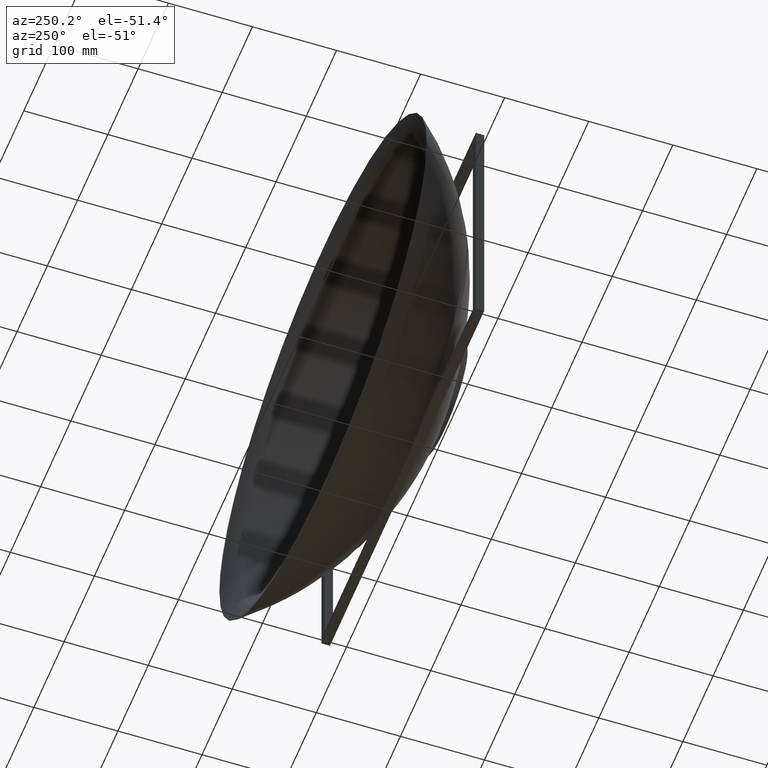
[diagram: clean part render]
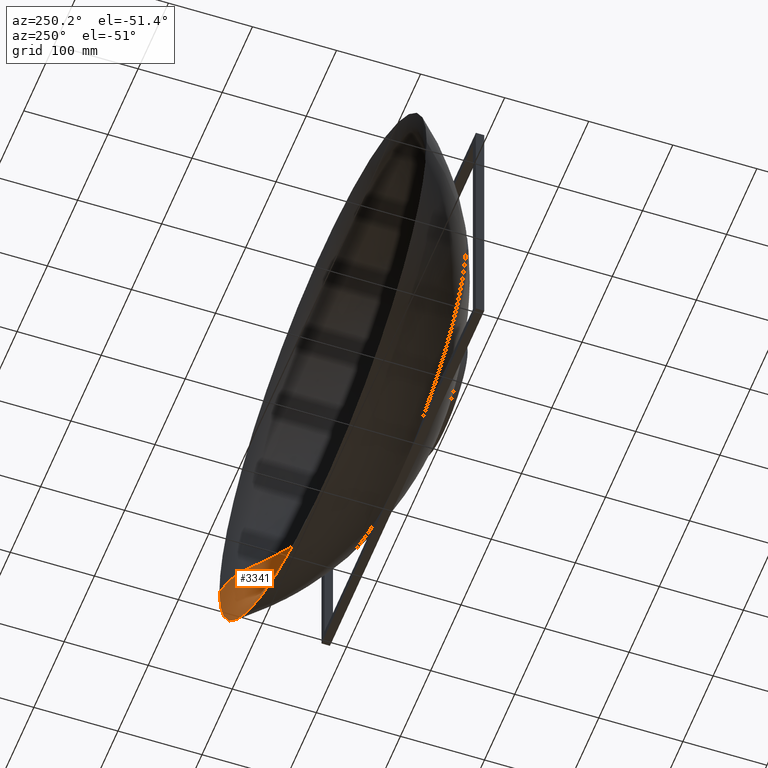
[diagram: same view with one face highlighted and labeled with its STEP entity id]
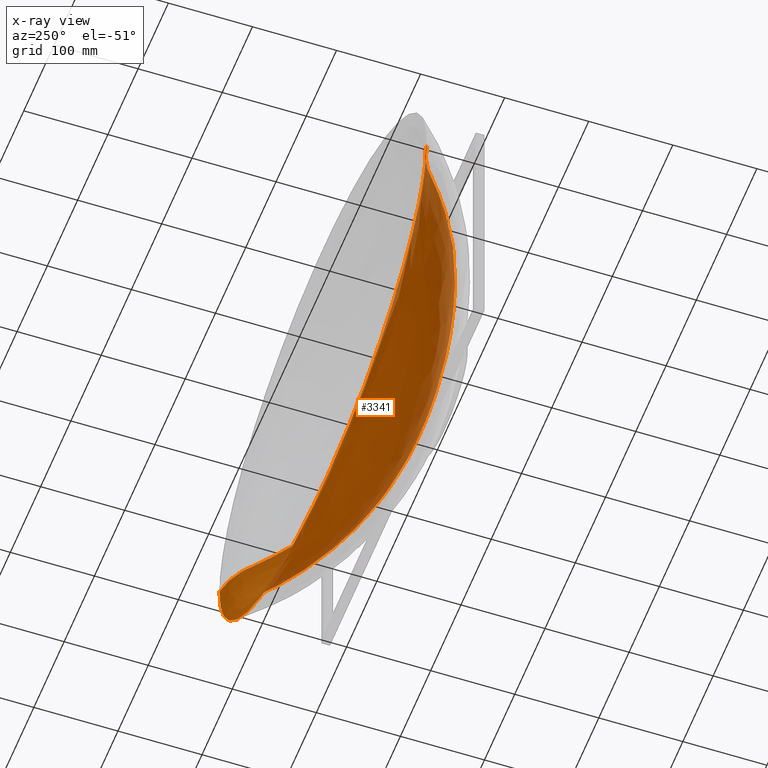
[diagram: x-ray of the same camera — body ghosted, the highlighted face saturated]
A machine part, auxiliary view. The second image highlights one B-rep face of the part: STEP entity #3341.
The next image is the same camera in x-ray: the body ghosted, the highlighted face saturated — about 0% of this face is hidden behind the body in this view.
In plain terms, the highlighted face is a freeform B-spline surface patch.
Its self-contained STEP definition (entity closure, byte-faithful):
#18 = CARTESIAN_POINT ( 'NONE',  ( 152.3072183491736100, -17.35120382136414500, -163.4422412126753800 ) ) ;
#19 = CARTESIAN_POINT ( 'NONE',  ( -32.98756784255958500, -120.0000000000000300, 1.023999319447354200 ) ) ;
#35 = CARTESIAN_POINT ( 'NONE',  ( -1.366969237019746400E-011, -104.9562333201061500, 104.6404079335307000 ) ) ;
#36 = CARTESIAN_POINT ( 'NONE',  ( -68.78428819599096800, -118.9237915598546400, -6.778522286627120900 ) ) ;
#43 = CARTESIAN_POINT ( 'NONE',  ( -1.173383614367444900E-011, -41.72762756969595400, 176.6692976285223200 ) ) ;
#47 = CARTESIAN_POINT ( 'NONE',  ( 294.8498903957146200, -17.23022909555367500, -49.10073512502722100 ) ) ;
#49 = CARTESIAN_POINT ( 'NONE',  ( -79.45687270978604000, -17.38507674459134800, -182.0667801891913200 ) ) ;
#54 = CARTESIAN_POINT ( 'NONE',  ( -54.81197618324019100, -78.70349892617024100, 140.0941072388511400 ) ) ;
#60 = CARTESIAN_POINT ( 'NONE',  ( -71.22650641146138600, -41.82989053312196100, -170.4484734631590800 ) ) ;
#65 = CARTESIAN_POINT ( 'NONE',  ( 83.98136034353476000, -6.027719384118355200, 191.3719497159794700 ) ) ;
#70 = CARTESIAN_POINT ( 'NONE',  ( -233.3459871146404800, -62.92420414408969300, -44.65463518468345700 ) ) ;
#76 = CARTESIAN_POINT ( 'NONE',  ( 18.22645896256443300, -118.8217236654542100, -55.81606114891212700 ) ) ;
#80 = CARTESIAN_POINT ( 'NONE',  ( 236.3133562894153100, -1.992501608793537200, 145.9481873379302800 ) ) ;
#93 = CARTESIAN_POINT ( 'NONE',  ( -32.19273222853999500, -120.0000000000000400, -29.37090462563727300 ) ) ;
#96 = CARTESIAN_POINT ( 'NONE',  ( -182.6755272975615000, -79.90114050133524900, -72.24192040745188600 ) ) ;
#98 = CARTESIAN_POINT ( 'NONE',  ( 245.0270232497479400, 0.0000000000000000000, 152.0240655199166600 ) ) ;
#103 = CARTESIAN_POINT ( 'NONE',  ( -104.5922714843993000, -114.0558864237332700, -9.540615724499039300 ) ) ;
#108 = CARTESIAN_POINT ( 'NONE',  ( -307.1582320205099600, -12.29689895816031400, 22.43624230246721400 ) ) ;
#111 = CARTESIAN_POINT ( 'NONE',  ( -270.8308131989225000, -42.98784813381782800, -5.351308564287746700 ) ) ;
#119 = CARTESIAN_POINT ( 'NONE',  ( -319.0602800235163300, -6.543251170896176000, -2.581084424752137200 ) ) ;
#126 = CARTESIAN_POINT ( 'NONE',  ( -338.3237878174667800, -0.5817441558028064700, 2.759574742329035800 ) ) ;
#130 = CARTESIAN_POINT ( 'NONE',  ( -262.7081546584890400, -42.90478788413574300, -48.67585304899368000 ) ) ;
#138 = CARTESIAN_POINT ( 'NONE',  ( -289.7484437393912300, -27.91991260716929400, 3.230922474006803200E-014 ) ) ;
#147 = CARTESIAN_POINT ( 'NONE',  ( -237.3428751153167900, -42.68208187913156600, -87.98076802063172900 ) ) ;
#149 = CARTESIAN_POINT ( 'NONE',  ( 75.04582846302044200, -113.8141128012274000, 57.63733480541613800 ) ) ;
#153 = CARTESIAN_POINT ( 'NONE',  ( -45.01482622555785400, -120.0000000000000300, -0.5440173449913656700 ) ) ;
#154 = CARTESIAN_POINT ( 'NONE',  ( 142.2281859403069000, -105.9891043423822100, 6.328414155663845900E-012 ) ) ;
#156 = CARTESIAN_POINT ( 'NONE',  ( 33.00000000000000700, -120.0000000000000000, 1.690825791548647100E-014 ) ) ;
#161 = CARTESIAN_POINT ( 'NONE',  ( 45.01482622555789000, -120.0000000000000300, 2.282960072089818300E-014 ) ) ;
#162 = CARTESIAN_POINT ( 'NONE',  ( 69.10149347013475600, -118.9249145191426300, 2.187410550147960800E-014 ) ) ;
#167 = CARTESIAN_POINT ( 'NONE',  ( 105.0702593143239800, -114.0609605156453800, 2.590336242122053400E-014 ) ) ;
#169 = CARTESIAN_POINT ( 'NONE',  ( 140.5410692284127900, -105.9619235260083300, 3.892190760484980700E-014 ) ) ;
#172 = CARTESIAN_POINT ( 'NONE',  ( -49.37875822864112500, -118.8702840671658300, 40.84493887320358100 ) ) ;
#173 = CARTESIAN_POINT ( 'NONE',  ( 175.1796392446546800, -94.68575974825176900, 5.697802336774996200E-014 ) ) ;
#178 = CARTESIAN_POINT ( 'NONE',  ( 208.6603852137191100, -80.33229146815540400, 5.140315108207642800E-014 ) ) ;
#184 = CARTESIAN_POINT ( 'NONE',  ( 240.6726715052032300, -63.04107165828809700, 4.817589292134861500E-014 ) ) ;
#186 = CARTESIAN_POINT ( 'NONE',  ( 270.9269175571782300, -42.98887076340632500, 6.633981547320169700E-014 ) ) ;
#187 = ORIENTED_EDGE ( 'NONE', *, *, #2211, .T. ) ;
#188 = CARTESIAN_POINT ( 'NONE',  ( 16.87630028773805100, -120.0000000000000100, -28.79005539188280200 ) ) ;
#191 = CARTESIAN_POINT ( 'NONE',  ( 289.7484437393912300, -27.91991260716930500, 5.249932093834870200E-014 ) ) ;
#197 = CARTESIAN_POINT ( 'NONE',  ( 301.9542119694874600, -17.22055111748891700, 6.517319356415074700E-014 ) ) ;
#198 = CARTESIAN_POINT ( 'NONE',  ( 308.5272438004439600, -12.29654937581971900, 6.379551205407013300E-014 ) ) ;
#200 = CARTESIAN_POINT ( 'NONE',  ( 71.22650641148204900, -41.82989053312252300, -170.4484734631618300 ) ) ;
#202 = CARTESIAN_POINT ( 'NONE',  ( 32.17118950397242100, -120.0000000000000000, 8.777137023834567800 ) ) ;
#206 = CARTESIAN_POINT ( 'NONE',  ( 319.0602800235168400, -6.543251170896147600, 5.241493394649520200E-014 ) ) ;
#208 = CARTESIAN_POINT ( 'NONE',  ( -300.6132218995173800, -17.22234154343092500, 22.07484148401952600 ) ) ;
#209 = CARTESIAN_POINT ( 'NONE',  ( -239.5946401770904400, -63.02354153122788500, 18.91729781948160400 ) ) ;
#211 = CARTESIAN_POINT ( 'NONE',  ( 330.3003915889108800, -2.335498289745746800, 8.629932889293664000E-014 ) ) ;
#218 = CARTESIAN_POINT ( 'NONE',  ( 342.5000000000002300, 0.0000000000000000000, 6.126513386457087700E-014 ) ) ;
#220 = CARTESIAN_POINT ( 'NONE',  ( -289.5466878175238900, -2.163999949270651000, 102.9180213840885000 ) ) ;
#225 = CARTESIAN_POINT ( 'NONE',  ( -105.0702593143236200, -114.0609605156454500, -3.252606517456513300E-016 ) ) ;
#226 = CARTESIAN_POINT ( 'NONE',  ( 45.57155800474605200, -120.0000000000000300, -3.996107411312389900E-011 ) ) ;
#235 = CARTESIAN_POINT ( 'NONE',  ( -208.5858069539884500, -80.33085429825885600, 4.389537370103004000 ) ) ;
#236 = CARTESIAN_POINT ( 'NONE',  ( -182.6755272975850600, -79.90114050110626900, 72.24192040746399400 ) ) ;
#240 = CARTESIAN_POINT ( 'NONE',  ( -208.5858069539869700, -80.33085429827258400, -4.389537370102978300 ) ) ;
#247 = CARTESIAN_POINT ( 'NONE',  ( 338.3237878174668400, -0.5817441558027919300, 9.042943942398022900E-014 ) ) ;
#250 = CARTESIAN_POINT ( 'NONE',  ( 23.61951603177940800, -120.0000000000000100, -23.61951603177939400 ) ) ;
#253 = CARTESIAN_POINT ( 'NONE',  ( -279.6836421834391300, -6.406786874395724100, -98.92045140232545500 ) ) ;
#254 = CARTESIAN_POINT ( 'NONE',  ( -270.9269175571784000, -42.98887076340646700, 3.534499082302744500E-014 ) ) ;
#258 = CARTESIAN_POINT ( 'NONE',  ( -210.7661351984702400, -62.61466316120406400, 80.75249390826292000 ) ) ;
#264 = CARTESIAN_POINT ( 'NONE',  ( -317.6457279261549600, -6.537640972039961100, -23.20814519483030800 ) ) ;
#269 = CARTESIAN_POINT ( 'NONE',  ( 170.6626906146263400, -0.3722409213401458600, -183.8104284489860200 ) ) ;
#280 = CARTESIAN_POINT ( 'NONE',  ( -39.31097991385203700, -120.0000000000000400, -20.91742966461685100 ) ) ;
#313 = EDGE_CURVE ( 'NONE', #1669, #612, #2618, .T. ) ;
#315 = CARTESIAN_POINT ( 'NONE',  ( -45.01482622555789700, -120.0000000000000300, -2.331034670843834500E-015 ) ) ;
#317 = CARTESIAN_POINT ( 'NONE',  ( -43.59533715029242300, -120.0000000000000100, -11.54948575073851400 ) ) ;
#330 = CARTESIAN_POINT ( 'NONE',  ( 54.81197618323854200, -78.70349892663439600, -140.0941072387958000 ) ) ;
#335 = CARTESIAN_POINT ( 'NONE',  ( -76.21452033782624400, -27.45110433338015100, 177.8023122112383900 ) ) ;
#340 = CARTESIAN_POINT ( 'NONE',  ( 102.5340498341734400, -114.0335329918273000, 21.21981167395270200 ) ) ;
#348 = CARTESIAN_POINT ( 'NONE',  ( -69.10149347013494000, -118.9249145191427200, -2.222614453595284100E-015 ) ) ;
#367 = CARTESIAN_POINT ( 'NONE',  ( -301.9542119694872900, -17.22055111748896300, -2.455036756251363500 ) ) ;
#374 = CARTESIAN_POINT ( 'NONE',  ( -146.1137059960553300, -27.54762368170922600, -159.5604249729239500 ) ) ;
#385 = CARTESIAN_POINT ( 'NONE',  ( -68.78428819599257300, -118.9237915598501400, 6.778522286606368600 ) ) ;
#398 = CARTESIAN_POINT ( 'NONE',  ( -53.06588049832757300, -113.6906889439492100, -70.60338246056943500 ) ) ;
#415 = CARTESIAN_POINT ( 'NONE',  ( -44.80536916576294700, -120.0000000000000700, -4.891939784234032200 ) ) ;
#417 = CARTESIAN_POINT ( 'NONE',  ( 234.9588336800940500, -62.94631421432946200, -42.07621670442168200 ) ) ;
#421 = CARTESIAN_POINT ( 'NONE',  ( -39.31097991385429000, -120.0000000000000300, 20.91742966533602300 ) ) ;
#432 = CARTESIAN_POINT ( 'NONE',  ( 11.92215977061969700, -120.0000000000000000, 40.06622675950180200 ) ) ;
#434 = CARTESIAN_POINT ( 'NONE',  ( 122.9682824549065700, -105.7172961786774300, -52.06316015398280000 ) ) ;
#441 = EDGE_LOOP ( 'NONE', ( #2742, #2248, #187, #4181 ) ) ;
#443 = CARTESIAN_POINT ( 'NONE',  ( -253.8999487610386700, -27.79581629841951000, -91.84490889530461300 ) ) ;
#444 = CARTESIAN_POINT ( 'NONE',  ( -66.94945904193939200, -118.9174281238789800, -16.00329580399413500 ) ) ;
#451 = CARTESIAN_POINT ( 'NONE',  ( 264.6466491230331700, -17.26410201878056600, -94.10360580150600600 ) ) ;
#453 = CARTESIAN_POINT ( 'NONE',  ( -76.21452033781344000, -27.45110433081264000, -177.8023122123181800 ) ) ;
#457 = CARTESIAN_POINT ( 'NONE',  ( -69.10149347013484100, -118.9249145191429700, -0.7538209596381710800 ) ) ;
#458 = CARTESIAN_POINT ( 'NONE',  ( -43.59533715029365200, -120.0000000000000000, 11.54948575093561100 ) ) ;
#463 = CARTESIAN_POINT ( 'NONE',  ( -228.2660065830346800, -6.270322577896879900, 140.2601704674212300 ) ) ;
#467 = CARTESIAN_POINT ( 'NONE',  ( -63.23899632727211900, -61.43019511246641400, -156.5535897397390100 ) ) ;
#475 = CARTESIAN_POINT ( 'NONE',  ( 27.64259899480767800, -113.5946926105513900, -78.85469511685148800 ) ) ;
#483 = CARTESIAN_POINT ( 'NONE',  ( 6.177762498014696200E-012, -27.40973889472190800, -184.2479617621880300 ) ) ;
#484 = CARTESIAN_POINT ( 'NONE',  ( -153.3204124521147400, -94.32715133540128200, 62.61714533554977900 ) ) ;
#489 = CARTESIAN_POINT ( 'NONE',  ( -105.1553312653293400, -79.03883856714766400, 125.5416234858623700 ) ) ;
#494 = CARTESIAN_POINT ( 'NONE',  ( 228.2660065830360200, -6.270322577895571600, 140.2601704674203800 ) ) ;
#500 = CARTESIAN_POINT ( 'NONE',  ( -292.8363409775338900, -17.23248729043568500, -52.10092650345906400 ) ) ;
#509 = CARTESIAN_POINT ( 'NONE',  ( -104.5922714844024000, -114.0558864237416800, 9.540615724508802100 ) ) ;
#516 = CARTESIAN_POINT ( 'NONE',  ( -8.708177856293254500E-013, -1.630449556678978700, -206.3435456541010100 ) ) ;
#522 = CARTESIAN_POINT ( 'NONE',  ( 215.9839315318705200, -17.30765292007233600, -133.4169581148360900 ) ) ;
#527 = CARTESIAN_POINT ( 'NONE',  ( 305.5063727563743900, -17.21571212845649200, 9.431711018007648400E-014 ) ) ;
#534 = CARTESIAN_POINT ( 'NONE',  ( 39.31097991385195900, -119.9999999999999900, 20.91742966533636400 ) ) ;
#548 = CARTESIAN_POINT ( 'NONE',  ( 294.8498903957127500, -17.23022909555385200, 49.10073512502727100 ) ) ;
#549 = CARTESIAN_POINT ( 'NONE',  ( 122.9682824548877600, -105.7172961786094900, 52.06316015386955300 ) ) ;
#554 = CARTESIAN_POINT ( 'NONE',  ( -270.8308131989234700, -42.98784813376360600, 5.351308564288406600 ) ) ;
#560 = CARTESIAN_POINT ( 'NONE',  ( 67.41714004279641900, -118.9188444689194200, 15.07641919270742500 ) ) ;
#565 = CARTESIAN_POINT ( 'NONE',  ( -121.2945725123121600, -61.76184616676239600, 140.3525618921688900 ) ) ;
#567 = CARTESIAN_POINT ( 'NONE',  ( -60.40192502993763700, -118.8975992931708600, -28.97956836044327400 ) ) ;
#573 = CARTESIAN_POINT ( 'NONE',  ( -308.4184570715962600, -12.29657772033393900, -5.822217585019525500 ) ) ;
#579 = CARTESIAN_POINT ( 'NONE',  ( 121.2945725123104100, -61.76184616597973300, -140.3525618924047600 ) ) ;
#586 = CARTESIAN_POINT ( 'NONE',  ( -33.00000000000000000, -120.0000000000000100, -0.4388568511917401700 ) ) ;
#592 = CARTESIAN_POINT ( 'NONE',  ( -136.5792108650576300, -42.06850411002712100, -152.8919985246736200 ) ) ;
#601 = CARTESIAN_POINT ( 'NONE',  ( 193.6678664557828400, -42.37529299460122400, -124.7426062476811500 ) ) ;
#612 = VERTEX_POINT ( 'NONE', #1061 ) ;
#614 = CARTESIAN_POINT ( 'NONE',  ( -33.00000000000000000, -120.0000000000000100, -6.396792817664476200E-015 ) ) ;
#637 = CARTESIAN_POINT ( 'NONE',  ( 210.7661351984481500, -62.61466316120112200, 80.75249390826537900 ) ) ;
#641 = CARTESIAN_POINT ( 'NONE',  ( -69.10149347013504000, -118.9249145191424900, 0.7538209596381533200 ) ) ;
#649 = CARTESIAN_POINT ( 'NONE',  ( -308.5272438004437300, -12.29654937581984500, 1.843143693225357500E-014 ) ) ;
#650 = CARTESIAN_POINT ( 'NONE',  ( 153.3204124521141400, -94.32715133527750600, -62.61714533550834000 ) ) ;
#655 = CARTESIAN_POINT ( 'NONE',  ( -18.22645896255569700, -118.8217236654541700, -55.81606114891033600 ) ) ;
#677 = CARTESIAN_POINT ( 'NONE',  ( 79.45687270978571300, -17.38507674459137700, 182.0667801891912600 ) ) ;
#679 = CARTESIAN_POINT ( 'NONE',  ( -63.23899632730157800, -61.43019511335086200, 156.5535897394470100 ) ) ;
#685 = CARTESIAN_POINT ( 'NONE',  ( -170.6626906146263400, -0.3722409213401690600, 183.8104284489862200 ) ) ;
#689 = CARTESIAN_POINT ( 'NONE',  ( -253.8999487610478800, -27.79581629970403300, 91.84490889501806500 ) ) ;
#694 = CARTESIAN_POINT ( 'NONE',  ( -136.5792108650861400, -42.06850410842512400, 152.8919985252433100 ) ) ;
#706 = CARTESIAN_POINT ( 'NONE',  ( 8.777137023834566100, -120.0000000000000100, -32.17118950397242100 ) ) ;
#711 = CARTESIAN_POINT ( 'NONE',  ( -237.3428751153326200, -42.68208187822782000, 87.98076802082121600 ) ) ;
#715 = CARTESIAN_POINT ( 'NONE',  ( -75.04582846302099600, -113.8141128011767100, -57.63733480493649400 ) ) ;
#722 = CARTESIAN_POINT ( 'NONE',  ( -288.4590673747647400, -27.91481086990966200, -21.53762743181495400 ) ) ;
#736 = CARTESIAN_POINT ( 'NONE',  ( 182.6755272975606200, -79.90114050110301500, 72.24192040746687800 ) ) ;
#749 = CARTESIAN_POINT ( 'NONE',  ( 43.90136266718100400, -120.0000000000000100, 10.88034689990713000 ) ) ;
#761 = CARTESIAN_POINT ( 'NONE',  ( 311.5669328963722900, -6.512925771673666400, 51.62168849504244200 ) ) ;
#763 = CARTESIAN_POINT ( 'NONE',  ( 264.6466491230291900, -17.26410201878088900, 94.10360580150582200 ) ) ;
#774 = CARTESIAN_POINT ( 'NONE',  ( -270.9269175571782300, -42.98887076341808500, -2.293417956123458000 ) ) ;
#789 = CARTESIAN_POINT ( 'NONE',  ( -28.79005539188281300, -120.0000000000000300, 16.87630028773803700 ) ) ;
#805 = CARTESIAN_POINT ( 'NONE',  ( -309.4413801821756900, -6.505849845189074700, 54.77493935552810500 ) ) ;
#811 = CARTESIAN_POINT ( 'NONE',  ( -125.1104190998261200, -93.96854292233443600, -88.70373991085261900 ) ) ;
#816 = CARTESIAN_POINT ( 'NONE',  ( -342.5000000000001100, 0.0000000000000000000, 3.447762908503904100E-014 ) ) ;
#822 = CARTESIAN_POINT ( 'NONE',  ( 32.19273222854305800, -120.0000000000000400, -29.37090462563681100 ) ) ;
#826 = CARTESIAN_POINT ( 'NONE',  ( 4.336808689942017700E-015, -120.0000000000000100, 33.41440524801380000 ) ) ;
#844 = CARTESIAN_POINT ( 'NONE',  ( 289.5466878175251400, -2.163999949269416000, 102.9180213840882500 ) ) ;
#850 = CARTESIAN_POINT ( 'NONE',  ( 75.04582846303945600, -113.8141128011777400, -57.63733480493398500 ) ) ;
#856 = CARTESIAN_POINT ( 'NONE',  ( -264.6466491230294200, -17.26410201878090700, -94.10360580150580700 ) ) ;
#862 = CARTESIAN_POINT ( 'NONE',  ( 88.30225545281119500, -93.60993450961886700, 108.7569565821168400 ) ) ;
#867 = CARTESIAN_POINT ( 'NONE',  ( -236.3133562894153400, -1.992501608793576500, -145.9481873379303400 ) ) ;
#875 = CARTESIAN_POINT ( 'NONE',  ( 22.90941187692365900, -119.9999999999999900, 35.86031588191033100 ) ) ;
#889 = CARTESIAN_POINT ( 'NONE',  ( 177.2742090408991900, -94.72560512746439100, -2.407171950052876200E-012 ) ) ;
#895 = CARTESIAN_POINT ( 'NONE',  ( 60.40192502993727400, -118.8975992931511900, 28.97956835994000700 ) ) ;
#901 = CARTESIAN_POINT ( 'NONE',  ( -338.3237878174667800, -0.5817441558027995900, 3.881443777498105900E-014 ) ) ;
#907 = CARTESIAN_POINT ( 'NONE',  ( 8.777137023834550100, -120.0000000000000300, 32.17118950397243500 ) ) ;
#912 = CARTESIAN_POINT ( 'NONE',  ( -208.6603852137192500, -80.33229146815548900, 1.019150042136374200E-014 ) ) ;
#923 = CARTESIAN_POINT ( 'NONE',  ( -9.711896966589654200E-012, -113.5535513248834100, 81.82761513326950400 ) ) ;
#925 = CARTESIAN_POINT ( 'NONE',  ( 102.5340498341802900, -114.0335329918094900, -21.21981167389900600 ) ) ;
#928 = CARTESIAN_POINT ( 'NONE',  ( -70.88634850629637200, -105.2280414839714000, -90.32626034129337700 ) ) ;
#929 = CARTESIAN_POINT ( 'NONE',  ( 270.4294669830196700, -12.30505273004736300, -95.63291065014993800 ) ) ;
#943 = CARTESIAN_POINT ( 'NONE',  ( -69.07622816872510900, -118.9248234683888800, 1.758915572488186900 ) ) ;
#949 = CARTESIAN_POINT ( 'NONE',  ( 23.61951603177939800, -120.0000000000000000, 23.61951603177941500 ) ) ;
#955 = CARTESIAN_POINT ( 'NONE',  ( 253.8999487610381600, -27.79581629970312300, 91.84490889501867600 ) ) ;
#960 = CARTESIAN_POINT ( 'NONE',  ( -1.072645712418578700E-012, -12.33150760986695400, 191.6551195685145800 ) ) ;
#968 = CARTESIAN_POINT ( 'NONE',  ( -7.029695835852889400E-014, 0.0000000000000000000, 214.9944952653620200 ) ) ;
#975 = CARTESIAN_POINT ( 'NONE',  ( -332.1773908580587400, 0.0000000000000000000, 59.34300217245861100 ) ) ;
#977 = CARTESIAN_POINT ( 'NONE',  ( -301.9542119694873500, -17.22055111748895600, 2.455036756251389300 ) ) ;
#983 = CARTESIAN_POINT ( 'NONE',  ( -44.99812427218218100, -120.0000000000000400, -1.269373804978638500 ) ) ;
#996 = CARTESIAN_POINT ( 'NONE',  ( 171.9692127437632800, -62.18825466336178900, -114.4814604917786300 ) ) ;
#1001 = CARTESIAN_POINT ( 'NONE',  ( -289.7484437393910600, -27.91991260715277800, -2.395273055378784700 ) ) ;
#1007 = CARTESIAN_POINT ( 'NONE',  ( -245.0270232497479100, 0.0000000000000000000, 152.0240655199164900 ) ) ;
#1013 = CARTESIAN_POINT ( 'NONE',  ( -46.01784111975099000, -93.33101685489836500, -121.4062215958019100 ) ) ;
#1017 = CARTESIAN_POINT ( 'NONE',  ( -175.1796392446546500, -94.68575974825169800, 8.456776945386934600E-015 ) ) ;
#1018 = CARTESIAN_POINT ( 'NONE',  ( 67.41714004279991500, -118.9188444689295800, -15.07641919281904900 ) ) ;
#1023 = CARTESIAN_POINT ( 'NONE',  ( 9.685308935601851000E-013, -12.33150760986688400, -191.6551195685144100 ) ) ;
#1028 = CARTESIAN_POINT ( 'NONE',  ( -152.3072183491739500, -17.35120382136419100, 163.4422412126755000 ) ) ;
#1032 = CARTESIAN_POINT ( 'NONE',  ( 70.88634850629478000, -105.2280414838540700, 90.32626034094748500 ) ) ;
#1033 = CARTESIAN_POINT ( 'NONE',  ( -105.0702593143237900, -114.0609605156459200, 1.060990583696282700 ) ) ;
#1044 = CARTESIAN_POINT ( 'NONE',  ( -170.6626906146275900, -0.3722409213395345100, -183.8104284489860200 ) ) ;
#1048 = CARTESIAN_POINT ( 'NONE',  ( 70.88634850632803400, -105.2280414839735400, -90.32626034128918500 ) ) ;
#1061 = CARTESIAN_POINT ( 'NONE',  ( 33.00000000000000700, -120.0000000000000000, 1.690825791548647100E-014 ) ) ;
#1075 = CARTESIAN_POINT ( 'NONE',  ( 301.2747952106180400, -12.29843901009251400, -49.90472215731011800 ) ) ;
#1081 = CARTESIAN_POINT ( 'NONE',  ( -8.777137023834559000, -120.0000000000000300, 32.17118950397242100 ) ) ;
#1086 = CARTESIAN_POINT ( 'NONE',  ( 32.17118950397242800, -120.0000000000000000, -8.777137023834543000 ) ) ;
#1110 = CARTESIAN_POINT ( 'NONE',  ( 172.7603754928495300, 0.0000000000000000000, -186.2777896492970600 ) ) ;
#1115 = CARTESIAN_POINT ( 'NONE',  ( 330.3814862552868000, -0.5662253976942871500, 55.19149484658015600 ) ) ;
#1120 = CARTESIAN_POINT ( 'NONE',  ( 210.7661351984700100, -62.61466316076237600, -80.75249390834179100 ) ) ;
#1129 = CARTESIAN_POINT ( 'NONE',  ( -136.2202655813147800, -105.8948775122685900, 28.76184868359563800 ) ) ;
#1130 = CARTESIAN_POINT ( 'NONE',  ( 39.31097991385421200, -120.0000000000000300, -20.91742966461658100 ) ) ;
#1135 = CARTESIAN_POINT ( 'NONE',  ( 155.6376056237575700, -12.32205943850273000, -166.0893106296201200 ) ) ;
#1148 = CARTESIAN_POINT ( 'NONE',  ( 237.3428751153321300, -42.68208187913357700, -87.98076802063059200 ) ) ;
#1150 = CARTESIAN_POINT ( 'NONE',  ( -105.0702593143234400, -114.0609605156449800, -1.060990583696302100 ) ) ;
#1154 = CARTESIAN_POINT ( 'NONE',  ( -146.1137059960720400, -27.54762368398422000, 159.5604249720647700 ) ) ;
#1160 = CARTESIAN_POINT ( 'NONE',  ( -83.98136034353386500, -6.027719384118631400, 191.3719497159782200 ) ) ;
#1164 = CARTESIAN_POINT ( 'NONE',  ( -270.4294669830182400, -12.30505273004753200, -95.63291065014954000 ) ) ;
#1170 = CARTESIAN_POINT ( 'NONE',  ( 105.1553312653273100, -79.03883856755859900, -125.5416234858189600 ) ) ;
#1175 = CARTESIAN_POINT ( 'NONE',  ( -174.3896079269150900, -94.67101695795767600, 14.65707578428569500 ) ) ;
#1180 = CARTESIAN_POINT ( 'NONE',  ( -207.1975444958983700, -27.67171999187169400, 130.2195007509663800 ) ) ;
#1182 = CARTESIAN_POINT ( 'NONE',  ( 146.1137059960544800, -27.54762368398304800, 159.5604249720657600 ) ) ;
#1187 = CARTESIAN_POINT ( 'NONE',  ( 243.5295904177605700, -63.08845038021102200, 4.289823305822556100E-012 ) ) ;
#1198 = CARTESIAN_POINT ( 'NONE',  ( -125.1104190998581800, -93.96854292251458700, 88.70373991093183000 ) ) ;
#1205 = CARTESIAN_POINT ( 'NONE',  ( -240.6726715052024600, -63.04107165828214200, -2.103810835220667900 ) ) ;
#1206 = CARTESIAN_POINT ( 'NONE',  ( -309.4413801821763700, -6.505849845188504500, -54.77493935552792700 ) ) ;
#1217 = CARTESIAN_POINT ( 'NONE',  ( -121.2945725122736200, -61.76184616597586100, -140.3525618924088900 ) ) ;
#1222 = CARTESIAN_POINT ( 'NONE',  ( 170.9904996521714200, -94.60606898979537500, -32.59997740364805500 ) ) ;
#1230 = CARTESIAN_POINT ( 'NONE',  ( -69.07622816872468300, -118.9248234683900300, -1.758915572489885900 ) ) ;
#1237 = CARTESIAN_POINT ( 'NONE',  ( -240.5869639378254000, -63.03965029661684100, -4.908891948848332900 ) ) ;
#1246 = CARTESIAN_POINT ( 'NONE',  ( -1.636113963634230700E-011, -93.21148071751375100, 125.9317610628159200 ) ) ;
#1252 = CARTESIAN_POINT ( 'NONE',  ( 236.3133562894132600, -1.992501608795109300, -145.9481873379306500 ) ) ;
#1260 = CARTESIAN_POINT ( 'NONE',  ( -36.93425004452651500, -105.0377757692308600, 100.8599157333776900 ) ) ;
#1267 = CARTESIAN_POINT ( 'NONE',  ( -342.5000000000001100, 0.0000000000000000000, 2.796278351082148700 ) ) ;
#1270 = CARTESIAN_POINT ( 'NONE',  ( 33.00000000000000700, -120.0000000000000000, 1.690825791548647100E-014 ) ) ;
#1272 = CARTESIAN_POINT ( 'NONE',  ( 33.00000000000000000, -120.0000000000000000, -2.925712341278227300 ) ) ;
#1275 = CARTESIAN_POINT ( 'NONE',  ( 32.17118950397242100, -120.0000000000000000, -8.777137023834567800 ) ) ;
#1279 = CARTESIAN_POINT ( 'NONE',  ( 28.79005539188281300, -120.0000000000000000, -16.87630028773803700 ) ) ;
#1282 = CARTESIAN_POINT ( 'NONE',  ( -262.7081546584976200, -42.90478788364177400, 48.67585304904565600 ) ) ;
#1283 = CARTESIAN_POINT ( 'NONE',  ( 23.61951603177940800, -120.0000000000000100, -23.61951603177939400 ) ) ;
#1285 = CARTESIAN_POINT ( 'NONE',  ( 16.87630028773805100, -120.0000000000000100, -28.79005539188280200 ) ) ;
#1288 = CARTESIAN_POINT ( 'NONE',  ( 8.777137023834566100, -120.0000000000000100, -32.17118950397242100 ) ) ;
#1291 = CARTESIAN_POINT ( 'NONE',  ( 1.344410693882025500E-014, -120.0000000000000100, -33.41440524801379300 ) ) ;
#1295 = CARTESIAN_POINT ( 'NONE',  ( -8.777137023834543000, -120.0000000000000300, -32.17118950397242800 ) ) ;
#1300 = CARTESIAN_POINT ( 'NONE',  ( -320.3465171343700000, -2.288495040874964900, 56.98475996639754700 ) ) ;
#1301 = CARTESIAN_POINT ( 'NONE',  ( -16.87630028773802600, -120.0000000000000300, -28.79005539188281300 ) ) ;
#1303 = CARTESIAN_POINT ( 'NONE',  ( -23.61951603177938400, -120.0000000000000300, -23.61951603177941200 ) ) ;
#1305 = CARTESIAN_POINT ( 'NONE',  ( -28.79005539188279900, -120.0000000000000100, -16.87630028773805800 ) ) ;
#1307 = CARTESIAN_POINT ( 'NONE',  ( -31.94578056316643700, -120.0000000000000000, -9.317081241428123700 ) ) ;
#1310 = CARTESIAN_POINT ( 'NONE',  ( -32.84426857135491700, -120.0000000000000600, -3.946321791925900600 ) ) ;
#1352 = CARTESIAN_POINT ( 'NONE',  ( -33.00000000000000000, -120.0000000000000100, -6.396792817664476200E-015 ) ) ;
#1356 = CARTESIAN_POINT ( 'NONE',  ( -307.1582320205096200, -12.29689895816032500, -22.43624230246719300 ) ) ;
#1361 = CARTESIAN_POINT ( 'NONE',  ( -33.00000000000000000, -120.0000000000000100, -0.4388568511917401700 ) ) ;
#1365 = CARTESIAN_POINT ( 'NONE',  ( -318.9478798166091500, -6.542796289907888900, 6.022530324421634200 ) ) ;
#1375 = CARTESIAN_POINT ( 'NONE',  ( -139.9048923631819400, -105.9518666239426400, 12.18320228963222000 ) ) ;
#1402 = CARTESIAN_POINT ( 'NONE',  ( -264.6466491230330600, -17.26410201878061600, 94.10360580150600600 ) ) ;
#1404 = CARTESIAN_POINT ( 'NONE',  ( -11.92215977061986000, -120.0000000000000600, -40.06622675678382700 ) ) ;
#1420 = CARTESIAN_POINT ( 'NONE',  ( 160.9605767673351400, -6.133858281395599300, 171.8199769182079400 ) ) ;
#1461 = CARTESIAN_POINT ( 'NONE',  ( 86.94017060702516600, -1.687615670171047900, -199.1699766745935800 ) ) ;
#1493 = CARTESIAN_POINT ( 'NONE',  ( 28.79005539188280200, -119.9999999999999900, 16.87630028773805400 ) ) ;
#1514 = CARTESIAN_POINT ( 'NONE',  ( -338.3237878174667800, -0.5817441558027927100, -2.759574742329007300 ) ) ;
#1519 = CARTESIAN_POINT ( 'NONE',  ( -101.8250799408715200, -114.0271332362688200, 22.52380540205136900 ) ) ;
#1533 = EDGE_CURVE ( 'NONE', #3552, #612, #1699, .T. ) ;
#1541 = CARTESIAN_POINT ( 'NONE',  ( 46.01784111974942700, -93.33101685514597500, 121.4062215959595900 ) ) ;
#1562 = CARTESIAN_POINT ( 'NONE',  ( 33.41440524801380000, -120.0000000000000000, 2.125036258071588700E-014 ) ) ;
#1563 = CARTESIAN_POINT ( 'NONE',  ( -342.3793838171690700, 0.0000000000000000000, 6.524649485858299500 ) ) ;
#1591 = CARTESIAN_POINT ( 'NONE',  ( -242.0463036758153500, -0.4420753328271853600, -150.0168633242347800 ) ) ;
#1606 = CARTESIAN_POINT ( 'NONE',  ( -208.6603852137192500, -80.33229146815548900, 1.019150042136374200E-014 ) ) ;
#1621 = CARTESIAN_POINT ( 'NONE',  ( 81.19931891562393400, -12.32867315845763500, -184.9939812165375500 ) ) ;
#1637 = CARTESIAN_POINT ( 'NONE',  ( -18.22645896256490900, -118.8217236654151500, 55.81606114701048700 ) ) ;
#1649 = CARTESIAN_POINT ( 'NONE',  ( -91.89950143453894800, -113.9375366584058300, -40.77971759520232100 ) ) ;
#1660 = CARTESIAN_POINT ( 'NONE',  ( 166.6272650912090700, -1.821003268317830500, 178.8084092706371300 ) ) ;
#1669 = VERTEX_POINT ( 'NONE', #614 ) ;
#1671 = CARTESIAN_POINT ( 'NONE',  ( 1.344410693882025500E-014, -120.0000000000000100, -33.41440524801379300 ) ) ;
#1699 = B_SPLINE_CURVE_WITH_KNOTS ( 'NONE', 3,
 ( #218, #247, #211, #206, #198, #197, #191, #186, #184, #178, #173, #169, #167, #162, #161, #156 ),
 .UNSPECIFIED., .F., .F.,
 ( 4, 1, 1, 1, 2, 1, 1, 1, 1, 1, 1, 1, 4 ),
 ( 0.0000000000000000000, 0.03731951193302347100, 0.07463902386604694100, 0.1119585357990704300, 0.1492780477320938800, 0.2556182917655821500, 0.3619585357990704500, 0.4682987798325587400, 0.5746390238660469300, 0.6809792678995352200, 0.7873195119330234100, 0.8936597559665118200, 1.000000000000000000 ),
 .UNSPECIFIED. ) ;
#1701 = CARTESIAN_POINT ( 'NONE',  ( -342.5000000000001100, 0.0000000000000000000, 3.447762908503904100E-014 ) ) ;
#1705 = CARTESIAN_POINT ( 'NONE',  ( -160.9605767673350600, -6.133858281395638400, -171.8199769182086000 ) ) ;
#1710 = CARTESIAN_POINT ( 'NONE',  ( -340.9820045202297400, 0.0000000000000000000, 25.14318496094210400 ) ) ;
#1714 = CARTESIAN_POINT ( 'NONE',  ( -292.8363409775358300, -17.23248729043551800, 52.10092650345921300 ) ) ;
#1720 = CARTESIAN_POINT ( 'NONE',  ( -105.0702593143236200, -114.0609605156454500, -3.252606517456513300E-016 ) ) ;
#1727 = CARTESIAN_POINT ( 'NONE',  ( -301.9542119694873500, -17.22055111748895900, 3.469446951953614200E-014 ) ) ;
#1738 = CARTESIAN_POINT ( 'NONE',  ( -240.6726715052027700, -63.04107165828787600, 1.669671345627676800E-014 ) ) ;
#1739 = CARTESIAN_POINT ( 'NONE',  ( -289.7484437393912300, -27.91991260716929400, 3.230922474006803200E-014 ) ) ;
#1759 = CARTESIAN_POINT ( 'NONE',  ( -300.2359668465141500, 0.0000000000000000000, 107.1870942838846500 ) ) ;
#1762 = CARTESIAN_POINT ( 'NONE',  ( 53.06588049832655700, -113.6906889440121200, 70.60338246128874600 ) ) ;
#1767 = CARTESIAN_POINT ( 'NONE',  ( 160.9605767673338600, -6.133858281396819700, -171.8199769182095100 ) ) ;
#1784 = CARTESIAN_POINT ( 'NONE',  ( -83.98136034353474600, -6.027719384118341000, -191.3719497159800700 ) ) ;
#1796 = CARTESIAN_POINT ( 'NONE',  ( -140.4904557270566000, -105.9611081015152500, 3.161371417501883700 ) ) ;
#1801 = CARTESIAN_POINT ( 'NONE',  ( 11.92215977062273100, -120.0000000000000600, -40.06622675678441700 ) ) ;
#1821 = CARTESIAN_POINT ( 'NONE',  ( -330.1840832892181700, -2.334926628610771300, -6.265444817598933000 ) ) ;
#1827 = CARTESIAN_POINT ( 'NONE',  ( 125.1104190998569300, -93.96854292233769000, -88.70373991084869700 ) ) ;
#1845 = CARTESIAN_POINT ( 'NONE',  ( 4.436023974202393700E-013, -0.2946471307980027000, 212.1372575711462200 ) ) ;
#1855 = CARTESIAN_POINT ( 'NONE',  ( 342.5000000000002300, 0.0000000000000000000, 6.126513386457087700E-014 ) ) ;
#1870 = CARTESIAN_POINT ( 'NONE',  ( 1.550032477501896000E-011, -78.55978193766566200, -145.2850473914796800 ) ) ;
#1876 = CARTESIAN_POINT ( 'NONE',  ( 264.5199603401437100, -42.92069545545570000, 45.86835912249073700 ) ) ;
#1903 = CARTESIAN_POINT ( 'NONE',  ( 86.94017060702694300, -1.687615670170699500, 199.1699766745943500 ) ) ;
#1916 = CARTESIAN_POINT ( 'NONE',  ( 76.21452033781274300, -27.45110433337990600, 177.8023122112373900 ) ) ;
#1932 = CARTESIAN_POINT ( 'NONE',  ( 264.5199603401519500, -42.92069545592280400, -45.86835912244789900 ) ) ;
#1952 = CARTESIAN_POINT ( 'NONE',  ( -289.6459698418776200, -27.91949895284748000, 5.588970462550026500 ) ) ;
#1969 = CARTESIAN_POINT ( 'NONE',  ( 4.595862196761196800E-013, -5.982231285285168500, 198.2588735575953400 ) ) ;
#1972 = CARTESIAN_POINT ( 'NONE',  ( -171.9692127437642700, -62.18825466399290000, 114.4814604916211800 ) ) ;
#1978 = CARTESIAN_POINT ( 'NONE',  ( 79.45687270979098600, -17.38507674459126000, -182.0667801891907200 ) ) ;
#1982 = CARTESIAN_POINT ( 'NONE',  ( -342.5000000000001100, 0.0000000000000000000, -2.796278351082128700 ) ) ;
#1983 = CARTESIAN_POINT ( 'NONE',  ( -172.7603754928495900, 0.0000000000000000000, 186.2777896492970900 ) ) ;
#1991 = CARTESIAN_POINT ( 'NONE',  ( -171.9692127437332700, -62.18825466335785300, -114.4814604917819700 ) ) ;
#1993 = CARTESIAN_POINT ( 'NONE',  ( 334.1773349120081200, -2.354553660909715100, 1.172212719674263300E-013 ) ) ;
#2007 = CARTESIAN_POINT ( 'NONE',  ( -299.2184399954440400, -12.29887992475632400, -52.95326805683266300 ) ) ;
#2047 = CARTESIAN_POINT ( 'NONE',  ( 8.715565686347732300E-012, -113.5535513248092800, -81.82761513228416600 ) ) ;
#2064 = CARTESIAN_POINT ( 'NONE',  ( 211.1463272047699300, -80.38019713114815100, -9.009506536025289700E-013 ) ) ;
#2094 = CARTESIAN_POINT ( 'NONE',  ( -300.2359668465143700, 0.0000000000000000000, -107.1870942838846900 ) ) ;
#2110 = CARTESIAN_POINT ( 'NONE',  ( -79.45687270979129800, -17.38507674459130900, 182.0667801891905800 ) ) ;
#2124 = CARTESIAN_POINT ( 'NONE',  ( -210.7661351984486400, -62.61466316075920000, -80.75249390834356700 ) ) ;
#2129 = CARTESIAN_POINT ( 'NONE',  ( -166.6272650912066800, -1.821003268319434200, 178.8084092706378700 ) ) ;
#2137 = CARTESIAN_POINT ( 'NONE',  ( -1.623998225149204300E-012, -120.0000000000000000, 41.60263167684289700 ) ) ;
#2158 = CARTESIAN_POINT ( 'NONE',  ( 171.9692127437322100, -62.18825466398904900, 114.4814604916253100 ) ) ;
#2171 = CARTESIAN_POINT ( 'NONE',  ( -36.93425004450110500, -105.0377757693627100, -100.8599157338089600 ) ) ;
#2182 = CARTESIAN_POINT ( 'NONE',  ( -160.9605767673338300, -6.133858281396906700, 171.8199769182091600 ) ) ;
#2197 = CARTESIAN_POINT ( 'NONE',  ( -100.3670959682022900, -105.4726688312326200, 73.69157834148776900 ) ) ;
#2211 = EDGE_CURVE ( 'NONE', #2910, #1669, #2815, .T. ) ;
#2215 = CARTESIAN_POINT ( 'NONE',  ( -342.5000000000001100, 0.0000000000000000000, 3.447762908503904100E-014 ) ) ;
#2219 = CARTESIAN_POINT ( 'NONE',  ( -207.1975444958849300, -27.67171999003679500, -130.2195007515394700 ) ) ;
#2223 = CARTESIAN_POINT ( 'NONE',  ( -342.5000000000001100, 0.0000000000000000000, -2.796278351082128700 ) ) ;
#2231 = CARTESIAN_POINT ( 'NONE',  ( -342.3793838171690700, 0.0000000000000000000, -6.524649485858280900 ) ) ;
#2234 = CARTESIAN_POINT ( 'NONE',  ( -340.9820045202297900, 0.0000000000000000000, -25.14318496094208300 ) ) ;
#2235 = CARTESIAN_POINT ( 'NONE',  ( 63.23899632730005000, -61.43019511246731000, -156.5535897397435000 ) ) ;
#2240 = CARTESIAN_POINT ( 'NONE',  ( -332.1773908580589700, 0.0000000000000000000, -59.34300217245854000 ) ) ;
#2248 = ORIENTED_EDGE ( 'NONE', *, *, #4557, .T. ) ;
#2253 = CARTESIAN_POINT ( 'NONE',  ( 149.0496977543044200, -79.46998953445358900, -102.3884584663394900 ) ) ;
#2256 = CARTESIAN_POINT ( 'NONE',  ( -300.2359668465143700, 0.0000000000000000000, -107.1870942838846900 ) ) ;
#2258 = CARTESIAN_POINT ( 'NONE',  ( 137.1668358046294400, -105.9075618932780700, -27.09746929288776200 ) ) ;
#2265 = CARTESIAN_POINT ( 'NONE',  ( -245.0270232497479700, 0.0000000000000000000, -152.0240655199166300 ) ) ;
#2272 = CARTESIAN_POINT ( 'NONE',  ( -32.84426857135494500, -120.0000000000000400, 3.946321791925879700 ) ) ;
#2276 = CARTESIAN_POINT ( 'NONE',  ( -172.7603754928495300, 0.0000000000000000000, -186.2777896492971200 ) ) ;
#2287 = CARTESIAN_POINT ( 'NONE',  ( -1.585985213811856000E-011, -61.28805894760064600, 162.3144275861557700 ) ) ;
#2291 = CARTESIAN_POINT ( 'NONE',  ( -90.13885508194142900, 0.0000000000000000000, -207.5110094692760200 ) ) ;
#2298 = CARTESIAN_POINT ( 'NONE',  ( 5.525365321529252000E-014, 0.0000000000000000000, -214.9944952653622200 ) ) ;
#2302 = B_SPLINE_CURVE_WITH_KNOTS ( 'NONE', 3,
 ( #2566, #2389, #2345, #2334, #2319, #2313, #2306, #2298, #2291, #2276, #2265, #2256, #2240, #2234, #2231, #2223, #2215 ),
 .UNSPECIFIED., .F., .F.,
 ( 4, 1, 1, 1, 1, 1, 1, 1, 1, 1, 1, 1, 1, 1, 4 ),
 ( 0.5000000000000000000, 0.5416666666666666300, 0.5833333333333333700, 0.6250000000000000000, 0.6666666666666666300, 0.7083333333333333700, 0.7500000000003462800, 0.7916666666666666300, 0.8333333333333333700, 0.8749999999999998900, 0.9166666666666666300, 0.9583333333333333700, 0.9916666666666667000, 0.9937499999999999100, 1.000000000000000000 ),
 .UNSPECIFIED. ) ;
#2306 = CARTESIAN_POINT ( 'NONE',  ( 90.13885508194151400, 0.0000000000000000000, -207.5110094692759600 ) ) ;
#2308 = CARTESIAN_POINT ( 'NONE',  ( -289.6459698418770500, -27.91949895277040400, -5.588970462550960900 ) ) ;
#2313 = CARTESIAN_POINT ( 'NONE',  ( 172.7603754928495300, 0.0000000000000000000, -186.2777896492970600 ) ) ;
#2319 = CARTESIAN_POINT ( 'NONE',  ( 245.0270232497480000, 0.0000000000000000000, -152.0240655199165800 ) ) ;
#2321 = CARTESIAN_POINT ( 'NONE',  ( 28.79005539188281300, -120.0000000000000000, -16.87630028773803700 ) ) ;
#2329 = CARTESIAN_POINT ( 'NONE',  ( -301.8476471458806100, -17.22069628715994600, -5.728419097919835500 ) ) ;
#2334 = CARTESIAN_POINT ( 'NONE',  ( 300.2359668465143700, 0.0000000000000000000, -107.1870942838847300 ) ) ;
#2338 = CARTESIAN_POINT ( 'NONE',  ( -207.7225297770497400, -80.31456637282173000, 16.91603625499736200 ) ) ;
#2342 = CARTESIAN_POINT ( 'NONE',  ( -330.3003915889111100, -2.335498289745728200, 4.380176776841437900E-014 ) ) ;
#2345 = CARTESIAN_POINT ( 'NONE',  ( 334.4589211445978700, 0.0000000000000000000, -55.92556702164242900 ) ) ;
#2377 = CARTESIAN_POINT ( 'NONE',  ( -69.10149347013494000, -118.9249145191427200, -2.222614453595284100E-015 ) ) ;
#2384 = CARTESIAN_POINT ( 'NONE',  ( 9.509840661846328000E-013, -1.630449556678964100, 206.3435456541009800 ) ) ;
#2389 = CARTESIAN_POINT ( 'NONE',  ( 342.5000000000002300, 0.0000000000000000000, -18.64185567388077300 ) ) ;
#2424 = CARTESIAN_POINT ( 'NONE',  ( 1.227819465622073100E-011, -104.9562333202441500, -104.6404079340052100 ) ) ;
#2437 = CARTESIAN_POINT ( 'NONE',  ( -308.5272438004437300, -12.29654937581984500, 1.843143693225357500E-014 ) ) ;
#2441 = CARTESIAN_POINT ( 'NONE',  ( -16.87630028773804700, -120.0000000000000700, 28.79005539188280900 ) ) ;
#2449 = CARTESIAN_POINT ( 'NONE',  ( 91.89950143453876300, -113.9375366584412900, 40.77971759544222200 ) ) ;
#2458 = CARTESIAN_POINT ( 'NONE',  ( -289.5466878175254800, -2.163999949269432000, -102.9180213840882300 ) ) ;
#2487 = CARTESIAN_POINT ( 'NONE',  ( 220.7096814199363500, -12.31355608427504200, -135.5864810677502100 ) ) ;
#2492 = CARTESIAN_POINT ( 'NONE',  ( -4.945720423176626800E-012, -118.8126185900870700, 57.93711983399730100 ) ) ;
#2501 = CARTESIAN_POINT ( 'NONE',  ( -270.9269175571784000, -42.98887076340646700, 3.534499082302744500E-014 ) ) ;
#2506 = CARTESIAN_POINT ( 'NONE',  ( -140.5410692284126200, -105.9619235260092200, -1.354873464643772800 ) ) ;
#2513 = CARTESIAN_POINT ( 'NONE',  ( 289.5466878175238900, -2.163999949270650100, -102.9180213840884300 ) ) ;
#2525 = CARTESIAN_POINT ( 'NONE',  ( 166.6272650912066200, -1.821003268319404000, -178.8084092706376400 ) ) ;
#2547 = CARTESIAN_POINT ( 'NONE',  ( -328.1279492099642400, -0.5626043541356711100, -58.56384408054837100 ) ) ;
#2553 = CARTESIAN_POINT ( 'NONE',  ( -45.01482622555789700, -120.0000000000000300, -2.331034670843834500E-015 ) ) ;
#2562 = CARTESIAN_POINT ( 'NONE',  ( -71.22650641148320000, -41.82989053131068900, 170.4484734638828600 ) ) ;
#2566 = CARTESIAN_POINT ( 'NONE',  ( 342.5000000000002300, 0.0000000000000000000, 6.126513386457087700E-014 ) ) ;
#2567 = CARTESIAN_POINT ( 'NONE',  ( 88.30225545285098600, -93.60993450940281900, -108.7569565819861900 ) ) ;
#2574 = CARTESIAN_POINT ( 'NONE',  ( 1.053109064025470700E-011, -41.72762757158547200, -176.6692976277378200 ) ) ;
#2579 = CARTESIAN_POINT ( 'NONE',  ( -175.1796392446549400, -94.68575974825333200, 1.629998870182645800 ) ) ;
#2593 = CARTESIAN_POINT ( 'NONE',  ( -336.8244370274023800, -0.5788731855528132000, 24.81314139927577900 ) ) ;
#2618 = B_SPLINE_CURVE_WITH_KNOTS ( 'NONE', 3,
 ( #1352, #1361, #2818, #1310, #1307, #1305, #1303, #1301, #1295, #1291, #1288, #1285, #1283, #1279, #1275, #1272, #1270 ),
 .UNSPECIFIED., .F., .F.,
 ( 4, 1, 1, 1, 1, 1, 1, 1, 1, 1, 1, 1, 1, 1, 4 ),
 ( 0.0000000000000000000, 0.006250000000000084500, 0.008333333333333298500, 0.04166666666666660200, 0.08333333333333331500, 0.1250000000000000300, 0.1666666666666665200, 0.2083333333333332000, 0.2499999999996535500, 0.2916666666666664100, 0.3333333333333331500, 0.3749999999999997200, 0.4166666666666663000, 0.4583333333333330400, 0.4999999999999995600 ),
 .UNSPECIFIED. ) ;
#2623 = CARTESIAN_POINT ( 'NONE',  ( -240.5869639378267400, -63.03965029664352900, 4.908891948848058500 ) ) ;
#2632 = CARTESIAN_POINT ( 'NONE',  ( -300.6132218995164700, -17.22234154343100000, -22.07484148401949000 ) ) ;
#2660 = CARTESIAN_POINT ( 'NONE',  ( -70.88634850632965400, -105.2280414838564600, 90.32626034094258200 ) ) ;
#2674 = CARTESIAN_POINT ( 'NONE',  ( -89.04520791226087800, -0.3179252679604882000, -204.7559919486877800 ) ) ;
#2684 = CARTESIAN_POINT ( 'NONE',  ( -233.3459871146522200, -62.92420414433299000, 44.65463518466135200 ) ) ;
#2738 = CARTESIAN_POINT ( 'NONE',  ( -174.3896079269099200, -94.67101695792843000, -14.65707578428410300 ) ) ;
#2742 = ORIENTED_EDGE ( 'NONE', *, *, #1533, .F. ) ;
#2782 = CARTESIAN_POINT ( 'NONE',  ( 43.90136266718215600, -120.0000000000000100, -10.88034689974714000 ) ) ;
#2815 = B_SPLINE_CURVE_WITH_KNOTS ( 'NONE', 3,
 ( #1701, #3284, #3643, #3305, #3357, #3820, #4616, #2501, #2953, #3936, #3968, #3832, #3860, #3841, #3868, #3847 ),
 .UNSPECIFIED., .F., .F.,
 ( 4, 1, 1, 1, 2, 1, 1, 1, 1, 1, 1, 1, 4 ),
 ( 0.0000000000000000000, 0.03731951193302347100, 0.07463902386604694100, 0.1119585357990704300, 0.1492780477320938800, 0.2556182917655821500, 0.3619585357990704500, 0.4682987798325587400, 0.5746390238660469300, 0.6809792678995352200, 0.7873195119330234100, 0.8936597559665118200, 1.000000000000000000 ),
 .UNSPECIFIED. ) ;
#2817 = CARTESIAN_POINT ( 'NONE',  ( -140.5410692284128500, -105.9619235260083900, 0.0000000000000000000 ) ) ;
#2818 = CARTESIAN_POINT ( 'NONE',  ( -32.98756784255957800, -120.0000000000000300, -1.023999319447374900 ) ) ;
#2842 = CARTESIAN_POINT ( 'NONE',  ( -269.7178667971999200, -42.97625833158331700, -20.62198185398616300 ) ) ;
#2855 = CARTESIAN_POINT ( 'NONE',  ( -207.7225297770442600, -80.31456637287465100, -16.91603625499688200 ) ) ;
#2862 = CARTESIAN_POINT ( 'NONE',  ( 136.5792108650561800, -42.06850410842214700, 152.8919985252462700 ) ) ;
#2875 = CARTESIAN_POINT ( 'NONE',  ( -105.0322161721218400, -114.0605491027891400, 2.475644695291722400 ) ) ;
#2910 = VERTEX_POINT ( 'NONE', #816 ) ;
#2933 = CARTESIAN_POINT ( 'NONE',  ( 36.93425004452520700, -105.0377757693631700, -100.8599157338135500 ) ) ;
#2951 = CARTESIAN_POINT ( 'NONE',  ( 91.89950143455212100, -113.9375366584066300, -40.77971759520094300 ) ) ;
#2953 = CARTESIAN_POINT ( 'NONE',  ( -240.6726715052027700, -63.04107165828787600, 1.669671345627676800E-014 ) ) ;
#2978 = CARTESIAN_POINT ( 'NONE',  ( -6.894551748968982900E-012, -27.40973889739919400, 184.2479617610118800 ) ) ;
#2992 = CARTESIAN_POINT ( 'NONE',  ( 270.4294669830180700, -12.30505273004745300, 95.63291065014955400 ) ) ;
#3000 = CARTESIAN_POINT ( 'NONE',  ( -2.841221244135756200E-012, -17.39959371168861300, 188.6341710802190900 ) ) ;
#3010 = CARTESIAN_POINT ( 'NONE',  ( -319.0602800235163300, -6.543251170896189400, 2.688821387764051000E-014 ) ) ;
#3064 = CARTESIAN_POINT ( 'NONE',  ( -101.8250799408642700, -114.0271332362488400, -22.52380540198615200 ) ) ;
#3072 = CARTESIAN_POINT ( 'NONE',  ( -153.3204124520923700, -94.32715133527492000, -62.61714533551047900 ) ) ;
#3079 = CARTESIAN_POINT ( 'NONE',  ( 234.9588336800828500, -62.94631421455500200, 42.07621670440484300 ) ) ;
#3084 = CARTESIAN_POINT ( 'NONE',  ( -90.13885508194142900, 0.0000000000000000000, -207.5110094692760200 ) ) ;
#3097 = CARTESIAN_POINT ( 'NONE',  ( 90.13885508194135800, 0.0000000000000000000, 207.5110094692759300 ) ) ;
#3101 = CARTESIAN_POINT ( 'NONE',  ( -270.9269175571784000, -42.98887076340646700, 3.534499082302744500E-014 ) ) ;
#3112 = CARTESIAN_POINT ( 'NONE',  ( 242.0463036758143300, -0.4420753328277988700, -150.0168633242347800 ) ) ;
#3123 = CARTESIAN_POINT ( 'NONE',  ( 71.22650641146022100, -41.82989053131005600, 170.4484734638799100 ) ) ;
#3135 = CARTESIAN_POINT ( 'NONE',  ( -317.6457279261547300, -6.537640972040201800, 23.20814519483033700 ) ) ;
#3137 = CARTESIAN_POINT ( 'NONE',  ( 100.3670959681744400, -105.4726688312302200, 73.69157834149196200 ) ) ;
#3143 = CARTESIAN_POINT ( 'NONE',  ( -35.00335057990664500, -118.8429688411809300, 49.96519561013504800 ) ) ;
#3155 = CARTESIAN_POINT ( 'NONE',  ( -330.1840832892181100, -2.334926628610848500, 6.265444817598973000 ) ) ;
#3160 = CARTESIAN_POINT ( 'NONE',  ( -140.4904557270554600, -105.9611081015191200, -3.161371417502301100 ) ) ;
#3171 = CARTESIAN_POINT ( 'NONE',  ( 27.64259899478961900, -113.5946926106222300, 78.85469511775345100 ) ) ;
#3182 = CARTESIAN_POINT ( 'NONE',  ( 89.04520791225998300, -0.3179252679606224800, -204.7559919486874700 ) ) ;
#3195 = CARTESIAN_POINT ( 'NONE',  ( -193.6678664557838400, -42.37529299330722000, 124.7426062480625900 ) ) ;
#3204 = CARTESIAN_POINT ( 'NONE',  ( -240.6726715052027700, -63.04107165828787600, 1.669671345627676800E-014 ) ) ;
#3221 = CARTESIAN_POINT ( 'NONE',  ( -91.89950143455222100, -113.9375366584423100, 40.77971759544038800 ) ) ;
#3225 = CARTESIAN_POINT ( 'NONE',  ( 220.7096814199343300, -12.31355608427516100, 135.5864810677495600 ) ) ;
#3239 = CARTESIAN_POINT ( 'NONE',  ( 282.9168505717972300, -27.89233565014190600, 47.90546110754398500 ) ) ;
#3240 = CARTESIAN_POINT ( 'NONE',  ( -208.6603852137195400, -80.33229146815256200, 1.881230301472713900 ) ) ;
#3256 = CARTESIAN_POINT ( 'NONE',  ( -208.6603852137189400, -80.33229146815843100, -1.881230301472726700 ) ) ;
#3257 = CARTESIAN_POINT ( 'NONE',  ( -53.06588049835120600, -113.6906889440133500, 70.60338246128513600 ) ) ;
#3267 = CARTESIAN_POINT ( 'NONE',  ( -54.81197618320811700, -78.70349892663355700, -140.0941072387905400 ) ) ;
#3273 = CARTESIAN_POINT ( 'NONE',  ( 279.6836421834392500, -6.406786874395681500, 98.92045140232527000 ) ) ;
#3283 = CARTESIAN_POINT ( 'NONE',  ( 16.87630028773804000, -120.0000000000000300, 28.79005539188281700 ) ) ;
#3284 = CARTESIAN_POINT ( 'NONE',  ( -338.3237878174667800, -0.5817441558027995900, 3.881443777498105900E-014 ) ) ;
#3285 = CARTESIAN_POINT ( 'NONE',  ( -140.5410692284131100, -105.9619235260075700, 1.354873464643749000 ) ) ;
#3292 = CARTESIAN_POINT ( 'NONE',  ( -279.6836421834381100, -6.406786874396715300, 98.92045140232576700 ) ) ;
#3298 = CARTESIAN_POINT ( 'NONE',  ( -136.2202655813046000, -105.8948775123037500, -28.76184868362791000 ) ) ;
#3301 = CARTESIAN_POINT ( 'NONE',  ( -330.3003915889111100, -2.335498289745745500, 2.685190636113870900 ) ) ;
#3305 = CARTESIAN_POINT ( 'NONE',  ( -319.0602800235163300, -6.543251170896189400, 2.688821387764051000E-014 ) ) ;
#3308 = CARTESIAN_POINT ( 'NONE',  ( -16.87630028773802600, -120.0000000000000300, -28.79005539188281300 ) ) ;
#3311 = CARTESIAN_POINT ( 'NONE',  ( 83.98136034353385100, -6.027719384118596800, -191.3719497159789300 ) ) ;
#3319 = CARTESIAN_POINT ( 'NONE',  ( -330.3003915889111100, -2.335498289745728200, 4.380176776841437900E-014 ) ) ;
#3322 = CARTESIAN_POINT ( 'NONE',  ( -23.61951603177940800, -120.0000000000000600, 23.61951603177939800 ) ) ;
#3336 = CARTESIAN_POINT ( 'NONE',  ( -328.8366164900476200, -2.328447802414913800, -24.14426770472215400 ) ) ;
#3341 = ADVANCED_FACE ( 'NONE', ( #4395 ), #4541, .T. ) ;
#3357 = CARTESIAN_POINT ( 'NONE',  ( -308.5272438004437300, -12.29654937581984500, 1.843143693225357500E-014 ) ) ;
#3363 = CARTESIAN_POINT ( 'NONE',  ( -220.7096814199343800, -12.31355608427520200, -135.5864810677495600 ) ) ;
#3364 = CARTESIAN_POINT ( 'NONE',  ( -139.9048923631775400, -105.9518666239575300, -12.18320228963708700 ) ) ;
#3399 = CARTESIAN_POINT ( 'NONE',  ( 182.6755272975844100, -79.90114050133820500, -72.24192040744975400 ) ) ;
#3409 = CARTESIAN_POINT ( 'NONE',  ( 193.6678664557598800, -42.37529299330423500, 124.7426062480652000 ) ) ;
#3444 = CARTESIAN_POINT ( 'NONE',  ( 18.22645896255521700, -118.8217236654150500, 55.81606114700856100 ) ) ;
#3449 = CARTESIAN_POINT ( 'NONE',  ( -31.94578056316645800, -120.0000000000000000, 9.317081241428105900 ) ) ;
#3454 = CARTESIAN_POINT ( 'NONE',  ( 170.6626906146275100, -0.3722409213395086500, 183.8104284489858700 ) ) ;
#3459 = CARTESIAN_POINT ( 'NONE',  ( 146.1137059960711900, -27.54762368171031600, -159.5604249729230200 ) ) ;
#3466 = CARTESIAN_POINT ( 'NONE',  ( -46.01784111978140900, -93.33101685514665700, 121.4062215959652800 ) ) ;
#3467 = CARTESIAN_POINT ( 'NONE',  ( -328.8366164900473900, -2.328447802415211300, 24.14426770472220700 ) ) ;
#3476 = CARTESIAN_POINT ( 'NONE',  ( 152.3072183491667600, -17.35120382136457100, 163.4422412126749300 ) ) ;
#3486 = CARTESIAN_POINT ( 'NONE',  ( -8.777137023834543000, -120.0000000000000300, -32.17118950397242800 ) ) ;
#3487 = CARTESIAN_POINT ( 'NONE',  ( -27.64259899480857300, -113.5946926106224900, 78.85469511775708900 ) ) ;
#3492 = CARTESIAN_POINT ( 'NONE',  ( -236.3133562894132900, -1.992501608795128400, 145.9481873379307300 ) ) ;
#3498 = CARTESIAN_POINT ( 'NONE',  ( -88.30225545285289000, -93.60993450962222100, 108.7569565821112100 ) ) ;
#3503 = CARTESIAN_POINT ( 'NONE',  ( -122.9682824548884100, -105.7172961786757700, -52.06316015398465400 ) ) ;
#3505 = CARTESIAN_POINT ( 'NONE',  ( 49.37875822863092900, -118.8702840671654400, 40.84493887320524400 ) ) ;
#3509 = CARTESIAN_POINT ( 'NONE',  ( -149.0496977543057300, -79.46998953412220600, 102.3884584663682300 ) ) ;
#3516 = CARTESIAN_POINT ( 'NONE',  ( -140.5410692284128500, -105.9619235260083900, 0.0000000000000000000 ) ) ;
#3524 = CARTESIAN_POINT ( 'NONE',  ( 137.1668358046198100, -105.9075618932430800, 27.09746929286270900 ) ) ;
#3530 = CARTESIAN_POINT ( 'NONE',  ( -202.2876363026879000, -80.21412416604415800, 39.93242698798939500 ) ) ;
#3531 = CARTESIAN_POINT ( 'NONE',  ( 53.06588049835017500, -113.6906889439502800, -70.60338246056633700 ) ) ;
#3540 = CARTESIAN_POINT ( 'NONE',  ( 1.421266690606085600E-011, -61.28805894667915800, -162.3144275864786400 ) ) ;
#3542 = CARTESIAN_POINT ( 'NONE',  ( -319.0602800235163300, -6.543251170896202700, 2.581084424752144700 ) ) ;
#3548 = CARTESIAN_POINT ( 'NONE',  ( -152.3072183491671600, -17.35120382136455000, -163.4422412126750400 ) ) ;
#3552 = VERTEX_POINT ( 'NONE', #1855 ) ;
#3560 = CARTESIAN_POINT ( 'NONE',  ( -166.6272650912091000, -1.821003268317884100, -178.8084092706372100 ) ) ;
#3562 = CARTESIAN_POINT ( 'NONE',  ( 207.1975444958978600, -27.67171999003790700, -130.2195007515386700 ) ) ;
#3565 = CARTESIAN_POINT ( 'NONE',  ( -105.1553312652873300, -79.03883856755480500, -125.5416234858238200 ) ) ;
#3569 = CARTESIAN_POINT ( 'NONE',  ( 1.465821547562270300E-012, -120.0000000000000400, -41.60263167388507100 ) ) ;
#3575 = CARTESIAN_POINT ( 'NONE',  ( 69.94367018380303600, -118.9279495442516900, 2.794210602772990500E-011 ) ) ;
#3581 = CARTESIAN_POINT ( 'NONE',  ( -280.9823904510801600, -27.88590102607759400, -50.83475762678721600 ) ) ;
#3586 = CARTESIAN_POINT ( 'NONE',  ( -318.9478798166091500, -6.542796289907825800, -6.022530324421627100 ) ) ;
#3598 = CARTESIAN_POINT ( 'NONE',  ( 46.01784111977983800, -93.33101685489907600, -121.4062215958071400 ) ) ;
#3606 = CARTESIAN_POINT ( 'NONE',  ( 22.90941187692762400, -120.0000000000000400, -35.86031587975130500 ) ) ;
#3610 = CARTESIAN_POINT ( 'NONE',  ( -319.0602800235163300, -6.543251170896189400, 2.688821387764051000E-014 ) ) ;
#3615 = CARTESIAN_POINT ( 'NONE',  ( -240.6726715052030600, -63.04107165829358900, 2.103810835220663500 ) ) ;
#3619 = CARTESIAN_POINT ( 'NONE',  ( -175.1168021507680200, -94.68456438687913100, 3.803330697092893500 ) ) ;
#3624 = CARTESIAN_POINT ( 'NONE',  ( -169.8124938388344600, -94.58747447956180600, 34.60112193245003500 ) ) ;
#3625 = CARTESIAN_POINT ( 'NONE',  ( 81.19931891562194400, -12.32867315845771600, 184.9939812165388800 ) ) ;
#3630 = CARTESIAN_POINT ( 'NONE',  ( 76.21452033782554700, -27.45110433081288900, -177.8023122123190900 ) ) ;
#3639 = CARTESIAN_POINT ( 'NONE',  ( 237.3428751153159100, -42.68208187822545300, 87.98076802082279400 ) ) ;
#3640 = CARTESIAN_POINT ( 'NONE',  ( -31.94578056316643700, -120.0000000000000000, -9.317081241428123700 ) ) ;
#3643 = CARTESIAN_POINT ( 'NONE',  ( -330.3003915889111100, -2.335498289745728200, 4.380176776841437900E-014 ) ) ;
#3644 = CARTESIAN_POINT ( 'NONE',  ( -149.0496977542719600, -79.46998953444979500, -102.3884584663434200 ) ) ;
#3652 = CARTESIAN_POINT ( 'NONE',  ( -301.8476471458809000, -17.22069628715992500, 5.728419097919861300 ) ) ;
#3657 = CARTESIAN_POINT ( 'NONE',  ( -338.2046532940340700, -0.5815113744311900500, 6.439007732101030600 ) ) ;
#3659 = CARTESIAN_POINT ( 'NONE',  ( 36.93425004449979800, -105.0377757692303500, 100.8599157333727600 ) ) ;
#3663 = CARTESIAN_POINT ( 'NONE',  ( -280.9823904510851100, -27.88590102677983000, 50.83475762670874300 ) ) ;
#3666 = CARTESIAN_POINT ( 'NONE',  ( -269.7178667972035600, -42.97625833137431800, 20.62198185399398300 ) ) ;
#3669 = CARTESIAN_POINT ( 'NONE',  ( -4.507438071158906200E-013, -5.982231285285142700, -198.2588735575960500 ) ) ;
#3675 = CARTESIAN_POINT ( 'NONE',  ( -33.00000000000000000, -120.0000000000000100, 0.4388568511917195800 ) ) ;
#3689 = CARTESIAN_POINT ( 'NONE',  ( 4.455577879132058600E-012, -118.8126185901278400, -57.93711983606679900 ) ) ;
#3691 = CARTESIAN_POINT ( 'NONE',  ( -308.5272438004437800, -12.29654937581984500, 2.495236107865518100 ) ) ;
#3699 = CARTESIAN_POINT ( 'NONE',  ( -88.30225545281308500, -93.60993450939963600, -108.7569565819910300 ) ) ;
#3704 = CARTESIAN_POINT ( 'NONE',  ( -1.723806614661530600E-011, -78.55978193718159700, 145.2850473915396500 ) ) ;
#3710 = CARTESIAN_POINT ( 'NONE',  ( 274.1303961656934100, -43.02295841726485300, -1.060056169265987600E-011 ) ) ;
#3713 = CARTESIAN_POINT ( 'NONE',  ( -193.6678664557609600, -42.37529299459861000, -124.7426062476833000 ) ) ;
#3720 = CARTESIAN_POINT ( 'NONE',  ( 106.3383640543975400, -114.0746742775588700, -1.338026057421113900E-011 ) ) ;
#3726 = CARTESIAN_POINT ( 'NONE',  ( 60.40192502994411000, -118.8975992931709600, -28.97956836044253800 ) ) ;
#3730 = CARTESIAN_POINT ( 'NONE',  ( 125.1104190998248400, -93.96854292251127600, 88.70373991093664800 ) ) ;
#3735 = CARTESIAN_POINT ( 'NONE',  ( 215.9839315318650700, -17.30765292007274800, 133.4169581148357500 ) ) ;
#3740 = CARTESIAN_POINT ( 'NONE',  ( -308.5272438004436700, -12.29654937581984500, -2.495236107865526100 ) ) ;
#3746 = CARTESIAN_POINT ( 'NONE',  ( 155.6376056237549800, -12.32205943850286400, 166.0893106296193200 ) ) ;
#3754 = CARTESIAN_POINT ( 'NONE',  ( -155.6376056237577600, -12.32205943850285300, 166.0893106296204600 ) ) ;
#3769 = CARTESIAN_POINT ( 'NONE',  ( 54.81197618320648200, -78.70349892616936000, 140.0941072388454500 ) ) ;
#3771 = CARTESIAN_POINT ( 'NONE',  ( -86.94017060702692800, -1.687615670170708800, -199.1699766745943200 ) ) ;
#3777 = CARTESIAN_POINT ( 'NONE',  ( -100.3670959681755100, -105.4726688313248800, -73.69157834172240500 ) ) ;
#3783 = CARTESIAN_POINT ( 'NONE',  ( -75.04582846304003900, -113.8141128012286600, 57.63733480541305500 ) ) ;
#3787 = CARTESIAN_POINT ( 'NONE',  ( 293.1642403231871300, -27.93370108584792200, 1.592946354614707900E-011 ) ) ;
#3789 = CARTESIAN_POINT ( 'NONE',  ( -296.5784305754456800, -0.5119097443149025500, -105.7767333561053800 ) ) ;
#3794 = CARTESIAN_POINT ( 'NONE',  ( -60.40192502994442900, -118.8975992931515200, 28.97956835993901900 ) ) ;
#3804 = CARTESIAN_POINT ( 'NONE',  ( -23.61951603177938400, -120.0000000000000300, -23.61951603177941200 ) ) ;
#3811 = CARTESIAN_POINT ( 'NONE',  ( 100.3670959682012300, -105.4726688313270400, -73.69157834171902300 ) ) ;
#3815 = CARTESIAN_POINT ( 'NONE',  ( -66.94945904194308600, -118.9174281238684000, 16.00329580385591300 ) ) ;
#3820 = CARTESIAN_POINT ( 'NONE',  ( -301.9542119694873500, -17.22055111748895900, 3.469446951953614200E-014 ) ) ;
#3821 = CARTESIAN_POINT ( 'NONE',  ( -32.84426857135491700, -120.0000000000000600, -3.946321791925900600 ) ) ;
#3825 = CARTESIAN_POINT ( 'NONE',  ( 228.2660065830349100, -6.270322577896797300, -140.2601704674215500 ) ) ;
#3830 = CARTESIAN_POINT ( 'NONE',  ( -340.9820045202297900, 0.0000000000000000000, -25.14318496094208300 ) ) ;
#3832 = CARTESIAN_POINT ( 'NONE',  ( -140.5410692284128500, -105.9619235260083900, 0.0000000000000000000 ) ) ;
#3833 = CARTESIAN_POINT ( 'NONE',  ( -336.8244370274025000, -0.5788731855526912900, -24.81314139927573900 ) ) ;
#3836 = CARTESIAN_POINT ( 'NONE',  ( -338.2046532940340700, -0.5815113744311584100, -6.439007732101003100 ) ) ;
#3841 = CARTESIAN_POINT ( 'NONE',  ( -69.10149347013494000, -118.9249145191427200, -2.222614453595284100E-015 ) ) ;
#3846 = CARTESIAN_POINT ( 'NONE',  ( 322.8069535870891400, -6.558413870507257200, 1.090658921661646800E-013 ) ) ;
#3847 = CARTESIAN_POINT ( 'NONE',  ( -33.00000000000000000, -120.0000000000000100, -6.396792817664476200E-015 ) ) ;
#3860 = CARTESIAN_POINT ( 'NONE',  ( -105.0702593143236200, -114.0609605156454500, -3.252606517456513300E-016 ) ) ;
#3863 = CARTESIAN_POINT ( 'NONE',  ( 149.0496977542706000, -79.46998953411805600, 102.3884584663730900 ) ) ;
#3868 = CARTESIAN_POINT ( 'NONE',  ( -45.01482622555789700, -120.0000000000000300, -2.331034670843834500E-015 ) ) ;
#3877 = CARTESIAN_POINT ( 'NONE',  ( -45.01482622555793300, -120.0000000000000300, 0.5440173449913511300 ) ) ;
#3878 = CARTESIAN_POINT ( 'NONE',  ( 300.2359668465141500, 0.0000000000000000000, 107.1870942838847600 ) ) ;
#3886 = CARTESIAN_POINT ( 'NONE',  ( -342.3793838171690700, 0.0000000000000000000, -6.524649485858280900 ) ) ;
#3898 = CARTESIAN_POINT ( 'NONE',  ( -105.0322161721210100, -114.0605491027869500, -2.475644695290949200 ) ) ;
#3904 = CARTESIAN_POINT ( 'NONE',  ( 296.5784305754454500, -0.5119097443148850100, 105.7767333561054100 ) ) ;
#3905 = CARTESIAN_POINT ( 'NONE',  ( -35.00335057989458000, -118.8429688412152700, -49.96519561164701200 ) ) ;
#3911 = CARTESIAN_POINT ( 'NONE',  ( 311.5669328963717200, -6.512925771674190400, -51.62168849504250500 ) ) ;
#3914 = CARTESIAN_POINT ( 'NONE',  ( -239.5946401770854700, -63.02354153112495500, -18.91729781948492200 ) ) ;
#3916 = CARTESIAN_POINT ( 'NONE',  ( 301.2747952106173600, -12.29843901009256300, 49.90472215731011800 ) ) ;
#3924 = CARTESIAN_POINT ( 'NONE',  ( 203.6885012316114100, -80.23648014210937200, 37.62460602945635200 ) ) ;
#3929 = CARTESIAN_POINT ( 'NONE',  ( 105.1553312652853500, -79.03883856714351500, 125.5416234858680300 ) ) ;
#3936 = CARTESIAN_POINT ( 'NONE',  ( -208.6603852137192500, -80.33229146815548900, 1.019150042136374200E-014 ) ) ;
#3937 = CARTESIAN_POINT ( 'NONE',  ( -49.37875822863139800, -118.8702840671934500, -40.84493887421186300 ) ) ;
#3956 = CARTESIAN_POINT ( 'NONE',  ( 253.8999487610477700, -27.79581629842039100, -91.84490889530424300 ) ) ;
#3957 = CARTESIAN_POINT ( 'NONE',  ( -301.9542119694873500, -17.22055111748895900, 3.469446951953614200E-014 ) ) ;
#3963 = CARTESIAN_POINT ( 'NONE',  ( -175.1796392446543700, -94.68575974825007800, -1.629998870182657800 ) ) ;
#3964 = CARTESIAN_POINT ( 'NONE',  ( -11.92215977062288700, -120.0000000000000100, 40.06622675950243500 ) ) ;
#3968 = CARTESIAN_POINT ( 'NONE',  ( -175.1796392446546500, -94.68575974825169800, 8.456776945386934600E-015 ) ) ;
#3972 = CARTESIAN_POINT ( 'NONE',  ( 170.9904996521598800, -94.60606898985764700, 32.59997740365804500 ) ) ;
#3978 = CARTESIAN_POINT ( 'NONE',  ( 322.5465049427160100, -2.297387547418146000, -53.70381272227664500 ) ) ;
#3979 = CARTESIAN_POINT ( 'NONE',  ( -175.1796392446546500, -94.68575974825169800, 8.456776945386934600E-015 ) ) ;
#3984 = CARTESIAN_POINT ( 'NONE',  ( 153.3204124520915700, -94.32715133539873900, 62.61714533555264200 ) ) ;
#3990 = CARTESIAN_POINT ( 'NONE',  ( -89.04520791226001100, -0.3179252679606226500, 204.7559919486874900 ) ) ;
#3994 = CARTESIAN_POINT ( 'NONE',  ( -289.7484437393913500, -27.91991260718581500, 2.395273055378806400 ) ) ;
#3995 = CARTESIAN_POINT ( 'NONE',  ( -296.5784305754447100, -0.5119097443154012600, 105.7767333561054500 ) ) ;
#4000 = CARTESIAN_POINT ( 'NONE',  ( -299.2184399954446100, -12.29887992475630700, 52.95326805683286900 ) ) ;
#4007 = CARTESIAN_POINT ( 'NONE',  ( -242.0463036758142200, -0.4420753328278200800, 150.0168633242348100 ) ) ;
#4011 = CARTESIAN_POINT ( 'NONE',  ( 1.468549779109322500E-011, -93.21148071725552600, -125.9317610626440900 ) ) ;
#4012 = CARTESIAN_POINT ( 'NONE',  ( 279.6836421834385600, -6.406786874396646100, -98.92045140232589500 ) ) ;
#4020 = CARTESIAN_POINT ( 'NONE',  ( -215.9839315318652700, -17.30765292007275100, -133.4169581148358100 ) ) ;
#4025 = CARTESIAN_POINT ( 'NONE',  ( -270.4294669830193800, -12.30505273004750300, 95.63291065015003800 ) ) ;
#4031 = CARTESIAN_POINT ( 'NONE',  ( -328.1279492099636200, -0.5626043541359581100, 58.56384408054848500 ) ) ;
#4039 = CARTESIAN_POINT ( 'NONE',  ( -33.00000000000000000, -120.0000000000000100, -6.396792817664476200E-015 ) ) ;
#4050 = CARTESIAN_POINT ( 'NONE',  ( 32.19273222853986000, -119.9999999999999900, 29.37090462707627800 ) ) ;
#4051 = CARTESIAN_POINT ( 'NONE',  ( -220.7096814199363700, -12.31355608427517500, 135.5864810677503600 ) ) ;
#4056 = CARTESIAN_POINT ( 'NONE',  ( -308.4184570715963800, -12.29657772033393600, 5.822217585019519200 ) ) ;
#4079 = CARTESIAN_POINT ( 'NONE',  ( -330.3003915889111100, -2.335498289745711300, -2.685190636113830900 ) ) ;
#4084 = CARTESIAN_POINT ( 'NONE',  ( -81.19931891562204400, -12.32867315845768300, -184.9939812165386900 ) ) ;
#4090 = CARTESIAN_POINT ( 'NONE',  ( 2.527649655522741100E-012, -17.39959371168857100, -188.6341710802192000 ) ) ;
#4093 = CARTESIAN_POINT ( 'NONE',  ( 35.00335057989397600, -118.8429688411805800, 49.96519561013698800 ) ) ;
#4099 = CARTESIAN_POINT ( 'NONE',  ( 312.1534680953569700, -12.29560455868331000, 1.043799593168558600E-013 ) ) ;
#4100 = CARTESIAN_POINT ( 'NONE',  ( -22.90941187692385100, -120.0000000000000600, -35.86031587975187300 ) ) ;
#4112 = CARTESIAN_POINT ( 'NONE',  ( 63.23899632727059100, -61.43019511335008100, 156.5535897394422300 ) ) ;
#4126 = CARTESIAN_POINT ( 'NONE',  ( -44.80536916576349400, -120.0000000000000400, 4.891939784263582800 ) ) ;
#4181 = ORIENTED_EDGE ( 'NONE', *, *, #313, .T. ) ;
#4188 = CARTESIAN_POINT ( 'NONE',  ( -122.9682824549071000, -105.7172961786113900, 52.06316015386705900 ) ) ;
#4230 = CARTESIAN_POINT ( 'NONE',  ( -245.0270232497479700, 0.0000000000000000000, -152.0240655199166300 ) ) ;
#4241 = CARTESIAN_POINT ( 'NONE',  ( -172.7603754928495300, 0.0000000000000000000, -186.2777896492971200 ) ) ;
#4246 = CARTESIAN_POINT ( 'NONE',  ( 242.0463036758153200, -0.4420753328271616600, 150.0168633242347500 ) ) ;
#4253 = CARTESIAN_POINT ( 'NONE',  ( 172.7603754928494200, 0.0000000000000000000, 186.2777896492970300 ) ) ;
#4257 = CARTESIAN_POINT ( 'NONE',  ( -32.98756784255957800, -120.0000000000000300, -1.023999319447374900 ) ) ;
#4259 = CARTESIAN_POINT ( 'NONE',  ( 334.4589211445978100, 0.0000000000000000000, 55.92556702164252900 ) ) ;
#4263 = CARTESIAN_POINT ( 'NONE',  ( -342.5000000000001100, 0.0000000000000000000, 3.447762908503904100E-014 ) ) ;
#4264 = CARTESIAN_POINT ( 'NONE',  ( 334.4589211445978700, 0.0000000000000000000, -55.92556702164242900 ) ) ;
#4275 = CARTESIAN_POINT ( 'NONE',  ( 322.5465049427167500, -2.297387547417474100, 53.70381272227673000 ) ) ;
#4283 = CARTESIAN_POINT ( 'NONE',  ( 207.1975444958843900, -27.67171999187052800, 130.2195007509674000 ) ) ;
#4284 = CARTESIAN_POINT ( 'NONE',  ( 342.2949385985569400, -0.5895035348569760400, 1.134063332963916400E-013 ) ) ;
#4288 = CARTESIAN_POINT ( 'NONE',  ( 330.3814862552864000, -0.5662253976945599300, -55.19149484658002100 ) ) ;
#4293 = CARTESIAN_POINT ( 'NONE',  ( -320.3465171343709100, -2.288495040874262800, -56.98475996639737000 ) ) ;
#4294 = CARTESIAN_POINT ( 'NONE',  ( 296.5784305754449400, -0.5119097443153855000, -105.7767333561054400 ) ) ;
#4299 = CARTESIAN_POINT ( 'NONE',  ( -175.1168021507666900, -94.68456438687152900, -3.803330697092775400 ) ) ;
#4305 = CARTESIAN_POINT ( 'NONE',  ( -342.5000000000001100, 0.0000000000000000000, 3.447762908503904100E-014 ) ) ;
#4310 = CARTESIAN_POINT ( 'NONE',  ( -32.19273222854319300, -120.0000000000000400, 29.37090462707571300 ) ) ;
#4316 = CARTESIAN_POINT ( 'NONE',  ( -169.8124938388222600, -94.58747447949264100, -34.60112193243929800 ) ) ;
#4318 = CARTESIAN_POINT ( 'NONE',  ( 89.04520791226082100, -0.3179252679604843700, 204.7559919486877500 ) ) ;
#4346 = CARTESIAN_POINT ( 'NONE',  ( 121.2945725122718600, -61.76184616675846700, 140.3525618921737000 ) ) ;
#4351 = CARTESIAN_POINT ( 'NONE',  ( -81.19931891562409000, -12.32867315845773200, 184.9939812165376900 ) ) ;
#4355 = CARTESIAN_POINT ( 'NONE',  ( -27.64259899479052500, -113.5946926105511500, -78.85469511684813400 ) ) ;
#4366 = CARTESIAN_POINT ( 'NONE',  ( -332.1773908580589700, 0.0000000000000000000, -59.34300217245854000 ) ) ;
#4377 = CARTESIAN_POINT ( 'NONE',  ( -215.9839315318706700, -17.30765292007238200, 133.4169581148360900 ) ) ;
#4388 = CARTESIAN_POINT ( 'NONE',  ( -288.4590673747670200, -27.91481087020676500, 21.53762743180319100 ) ) ;
#4395 = FACE_OUTER_BOUND ( 'NONE', #441, .T. ) ;
#4396 = CARTESIAN_POINT ( 'NONE',  ( -44.99812427218232400, -120.0000000000000300, 1.269373804981021300 ) ) ;
#4437 = CARTESIAN_POINT ( 'NONE',  ( -338.3237878174667800, -0.5817441558027995900, 3.881443777498105900E-014 ) ) ;
#4443 = CARTESIAN_POINT ( 'NONE',  ( -28.79005539188279900, -120.0000000000000100, -16.87630028773805800 ) ) ;
#4444 = CARTESIAN_POINT ( 'NONE',  ( -90.13885508194154300, 0.0000000000000000000, 207.5110094692758500 ) ) ;
#4451 = CARTESIAN_POINT ( 'NONE',  ( 203.6885012316235800, -80.23648014223040500, -37.62460602945240900 ) ) ;
#4467 = CARTESIAN_POINT ( 'NONE',  ( -155.6376056237551500, -12.32205943850286500, -166.0893106296193200 ) ) ;
#4468 = CARTESIAN_POINT ( 'NONE',  ( 90.13885508194151400, 0.0000000000000000000, -207.5110094692759600 ) ) ;
#4473 = CARTESIAN_POINT ( 'NONE',  ( 5.525365321529252000E-014, 0.0000000000000000000, -214.9944952653622200 ) ) ;
#4476 = CARTESIAN_POINT ( 'NONE',  ( 136.5792108650847200, -42.06850411002974300, -152.8919985246709800 ) ) ;
#4488 = CARTESIAN_POINT ( 'NONE',  ( -86.94017060702513800, -1.687615670171029600, 199.1699766745936100 ) ) ;
#4492 = CARTESIAN_POINT ( 'NONE',  ( -22.90941187692781300, -120.0000000000000600, 35.86031588190967800 ) ) ;
#4498 = CARTESIAN_POINT ( 'NONE',  ( -202.2876363026750800, -80.21412416616925600, -39.93242698798610500 ) ) ;
#4507 = CARTESIAN_POINT ( 'NONE',  ( -270.9269175571785700, -42.98887076339485000, 2.293417956123488200 ) ) ;
#4511 = CARTESIAN_POINT ( 'NONE',  ( -228.2660065830357900, -6.270322577895616900, -140.2601704674207800 ) ) ;
#4516 = CARTESIAN_POINT ( 'NONE',  ( -33.00000000000000000, -120.0000000000000100, -6.396792817664476200E-015 ) ) ;
#4520 = CARTESIAN_POINT ( 'NONE',  ( 282.9168505718020600, -27.89233564948223400, -47.90546110760735800 ) ) ;
#4536 = CARTESIAN_POINT ( 'NONE',  ( 35.00335057990602600, -118.8429688412154800, -49.96519561164537000 ) ) ;
#4541 = B_SPLINE_SURFACE_WITH_KNOTS ( 'NONE', 3, 3, ( 
 ( #4263, #1982, #3886, #3830, #4366, #2094, #4230, #4241, #3084, #4473, #4468, #1110, #4596, #4571, #4264, #4562, #4259, #3878, #98, #4253, #3097, #968, #4444, #1983, #1007, #1759, #975, #1710, #1563, #1267, #4305 ),
 ( #4437, #1514, #3836, #3833, #2547, #3789, #1591, #1044, #2674, #4606, #3182, #269, #3112, #4294, #4288, #4284, #1115, #3904, #4246, #3454, #4318, #1845, #3990, #685, #4007, #3995, #4031, #2593, #3657, #126, #901 ),
 ( #2342, #4079, #1821, #3336, #4293, #2458, #867, #3560, #3771, #516, #1461, #2525, #1252, #2513, #3978, #1993, #4275, #844, #80, #1660, #1903, #2384, #4488, #2129, #3492, #220, #1300, #3467, #3155, #3301, #3319 ),
 ( #3610, #119, #3586, #264, #1206, #253, #4511, #1705, #1784, #3669, #3311, #1767, #3825, #4012, #3911, #3846, #761, #3273, #494, #1420, #65, #1969, #1160, #2182, #463, #3292, #805, #3135, #1365, #3542, #3010 ),
 ( #649, #3740, #573, #1356, #2007, #1164, #3363, #4467, #4084, #1023, #1621, #1135, #2487, #929, #1075, #4099, #3916, #2992, #3225, #3746, #3625, #960, #4351, #3754, #4051, #4025, #4000, #108, #4056, #3691, #2437 ),
 ( #3957, #367, #2329, #2632, #500, #856, #4020, #3548, #49, #4090, #1978, #18, #522, #451, #47, #527, #548, #763, #3735, #3476, #677, #3000, #2110, #1028, #4377, #1402, #1714, #208, #3652, #977, #1727 ),
 ( #1739, #1001, #2308, #722, #3581, #443, #2219, #374, #453, #483, #3630, #3459, #3562, #3956, #4520, #3787, #3239, #955, #4283, #1182, #1916, #2978, #335, #1154, #1180, #689, #3663, #4388, #1952, #3994, #138 ),
 ( #3101, #774, #111, #2842, #130, #147, #3713, #592, #60, #2574, #200, #4476, #601, #1148, #1932, #3710, #1876, #3639, #3409, #2862, #3123, #43, #2562, #694, #3195, #711, #1282, #3666, #554, #4507, #254 ),
 ( #3204, #1205, #1237, #3914, #70, #2124, #1991, #1217, #467, #3540, #2235, #579, #996, #1120, #417, #1187, #3079, #637, #2158, #4346, #4112, #2287, #679, #565, #1972, #258, #2684, #209, #2623, #3615, #1738 ),
 ( #1606, #3256, #240, #2855, #4498, #96, #3644, #3565, #3267, #1870, #330, #1170, #2253, #3399, #4451, #2064, #3924, #736, #3863, #3929, #3769, #3704, #54, #489, #3509, #236, #3530, #2338, #235, #3240, #912 ),
 ( #3979, #3963, #4299, #2738, #4316, #3072, #811, #3699, #1013, #4011, #3598, #2567, #1827, #650, #1222, #889, #3972, #3984, #3730, #862, #1541, #1246, #3466, #3498, #1198, #484, #3624, #1175, #3619, #2579, #1017 ),
 ( #2817, #2506, #3160, #3364, #3298, #3503, #3777, #928, #2171, #2424, #2933, #1048, #3811, #434, #2258, #154, #3524, #549, #3137, #1032, #3659, #35, #1260, #2660, #2197, #4188, #1129, #1375, #1796, #3285, #3516 ),
 ( #225, #1150, #3898, #103, #3064, #1649, #715, #398, #4355, #2047, #475, #3531, #850, #2951, #925, #3720, #340, #2449, #149, #1762, #3171, #923, #3487, #3257, #3783, #3221, #1519, #509, #2875, #1033, #1720 ),
 ( #348, #457, #1230, #36, #444, #567, #3937, #3905, #655, #3689, #76, #4536, #4574, #3726, #1018, #3575, #560, #895, #3505, #4093, #3444, #2492, #1637, #3143, #172, #3794, #3815, #385, #943, #641, #2377 ),
 ( #2553, #153, #983, #415, #317, #280, #93, #4100, #1404, #3569, #1801, #3606, #822, #1130, #2782, #226, #749, #534, #4050, #875, #432, #2137, #3964, #4492, #4310, #421, #458, #4126, #4396, #3877, #315 ),
 ( #4039, #586, #4257, #3821, #3640, #4443, #3804, #3308, #3486, #1671, #706, #188, #250, #2321, #1086, #1562, #202, #1493, #949, #3283, #907, #826, #1081, #2441, #3322, #789, #3449, #2272, #19, #3675, #4516 ) ),
 .UNSPECIFIED., .F., .T., .F.,
 ( 4, 1, 1, 1, 2, 1, 1, 1, 1, 1, 1, 1, 4 ),
 ( 4, 1, 1, 1, 1, 1, 1, 1, 1, 1, 1, 1, 1, 1, 1, 1, 1, 1, 1, 1, 1, 1, 1, 1, 1, 1, 1, 1, 4 ),
 ( 0.0000000000000000000, 0.03731951193302347100, 0.07463902386604694100, 0.1119585357990704300, 0.1492780477320938800, 0.2556182917655821500, 0.3619585357990704500, 0.4682987798325587400, 0.5746390238660469300, 0.6809792678995352200, 0.7873195119330234100, 0.8936597559665118200, 1.000000000000000000 ),
 ( 0.0000000000000000000, 0.006250000000000088800, 0.008333333333333303700, 0.04166666666666663000, 0.08333333333333337000, 0.1250000000000001100, 0.1666666666666666300, 0.2083333333333333700, 0.2499999999996537500, 0.2916666666666666300, 0.3333333333333333700, 0.3750000000000000000, 0.4166666666666666300, 0.4583333333333333700, 0.4999999999999999400, 0.5416666666666667400, 0.5833333333333332600, 0.6250000000000000000, 0.6666666666666667400, 0.7083333333333332600, 0.7499999999996150900, 0.7916666666666666300, 0.8333333333333333700, 0.8750000000000000000, 0.9166666666666666300, 0.9583333333333333700, 0.9916666666666667000, 0.9937500000000000200, 1.000000000000000000 ),
 .UNSPECIFIED. ) ;
#4557 = EDGE_CURVE ( 'NONE', #3552, #2910, #2302, .T. ) ;
#4562 = CARTESIAN_POINT ( 'NONE',  ( 346.5205394277014600, 0.0000000000000000000, 8.027384139329177100E-014 ) ) ;
#4571 = CARTESIAN_POINT ( 'NONE',  ( 300.2359668465143700, 0.0000000000000000000, -107.1870942838847300 ) ) ;
#4574 = CARTESIAN_POINT ( 'NONE',  ( 49.37875822864064200, -118.8702840671936500, -40.84493887421052700 ) ) ;
#4596 = CARTESIAN_POINT ( 'NONE',  ( 245.0270232497480000, 0.0000000000000000000, -152.0240655199165800 ) ) ;
#4606 = CARTESIAN_POINT ( 'NONE',  ( -4.454128910744141000E-013, -0.2946471307980046400, -212.1372575711462800 ) ) ;
#4616 = CARTESIAN_POINT ( 'NONE',  ( -289.7484437393912300, -27.91991260716929400, 3.230922474006803200E-014 ) ) ;